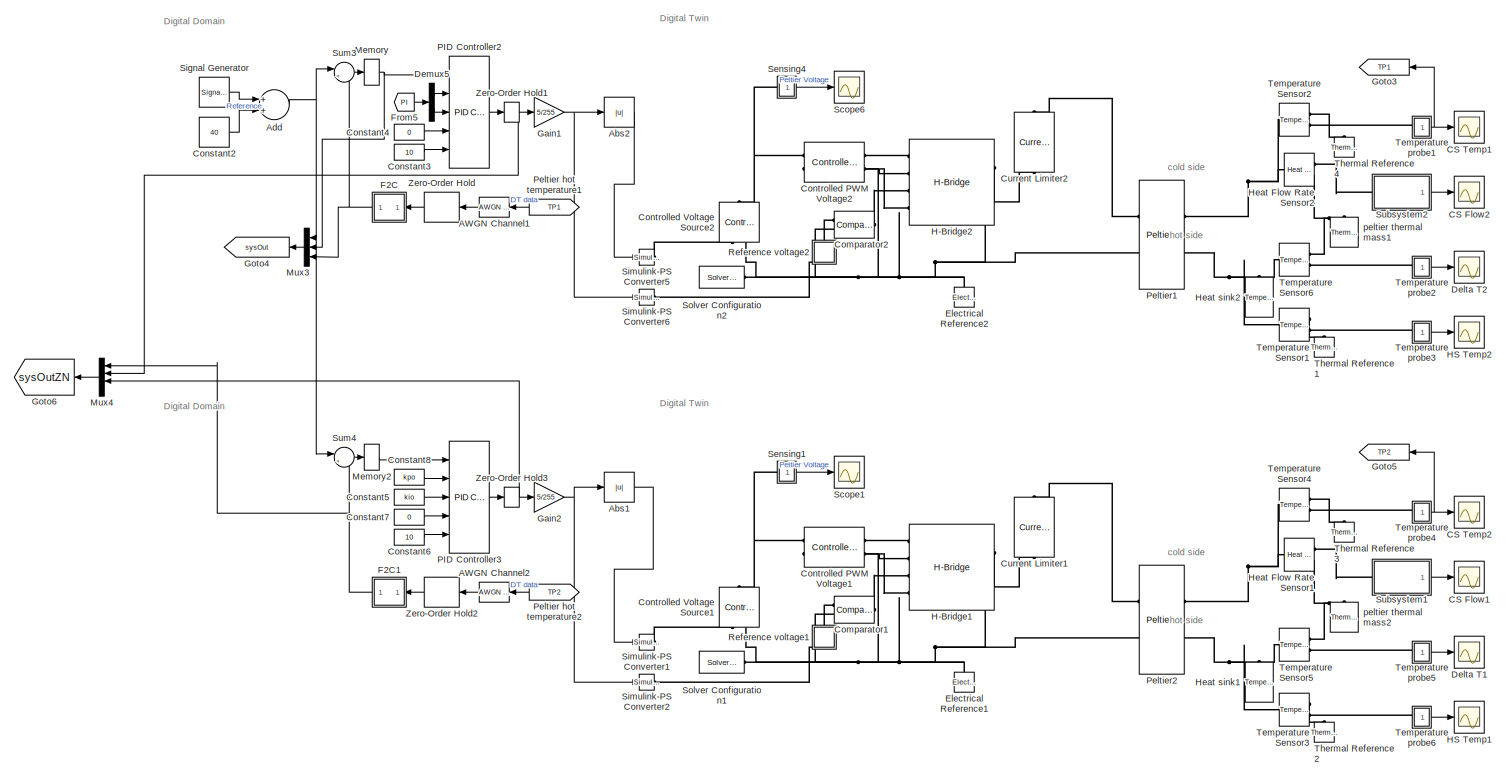
[diagram: root canvas - part 1/2, right side, full height]
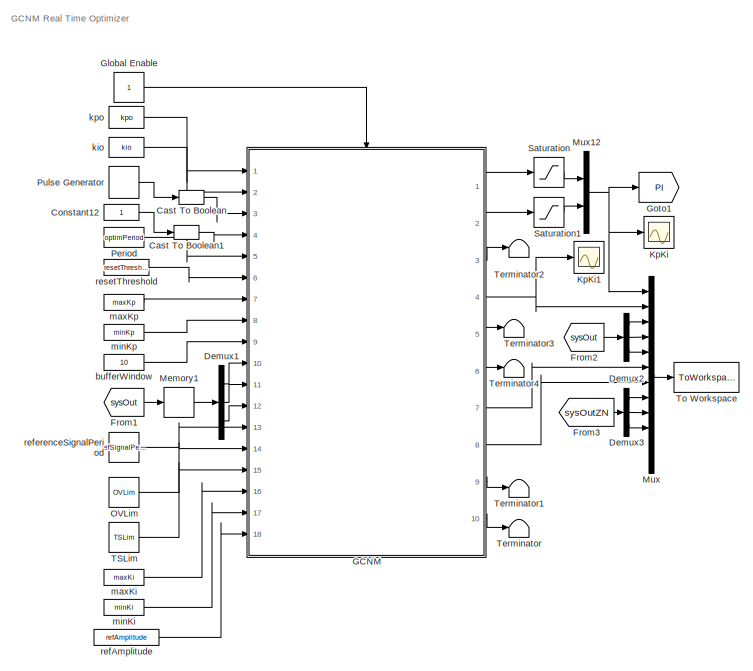
[diagram: root canvas - part 2/2, left side, full height]
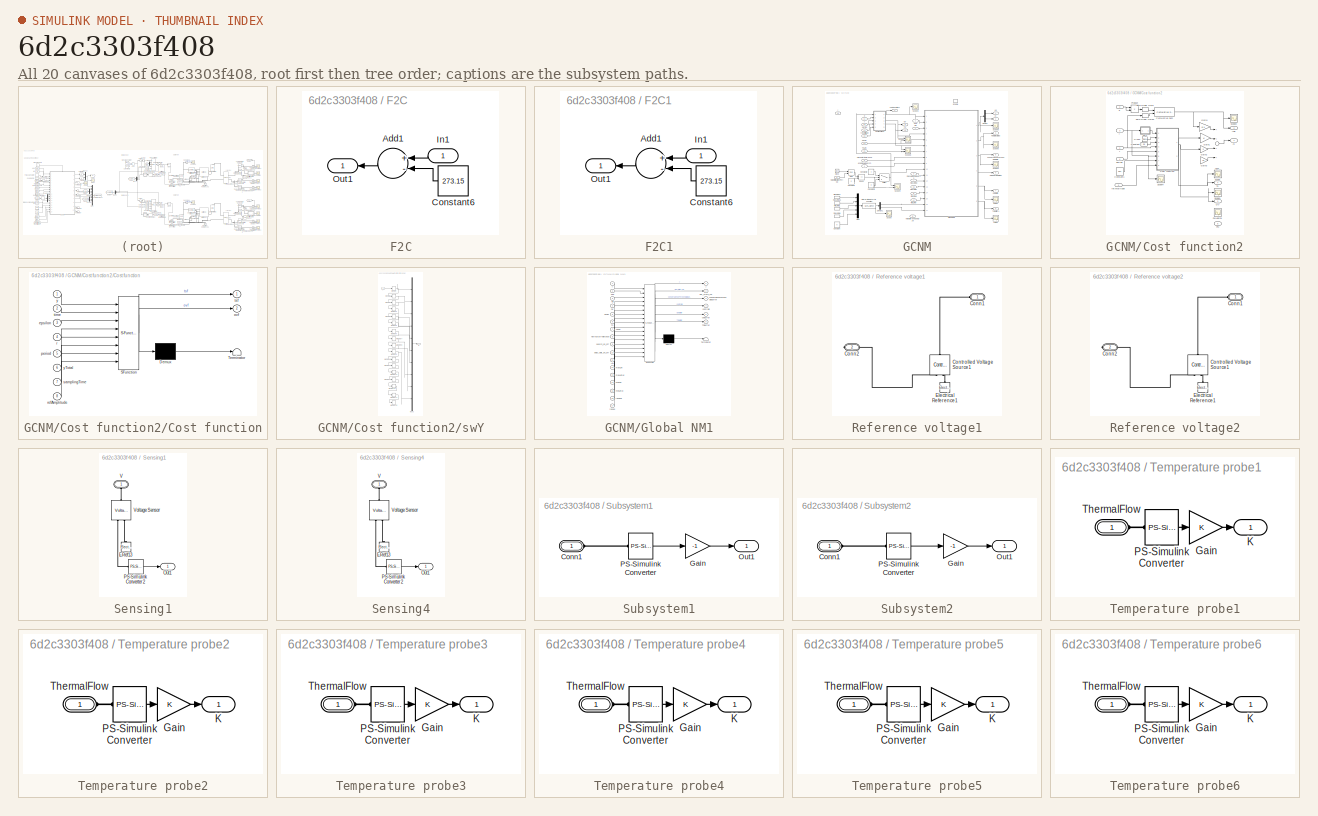
[diagram: thumbnail index - all 20 canvases of the model, root first then tree order]
MODEL slx_6d2c3303f408
KIND model
CONFIG AbsTol = auto
CONFIG EnableMultiTasking = off
CONFIG FixedStep = 0.01
CONFIG MaxStep = auto
CONFIG MinStep = auto
CONFIG RelTol = 1e-3
CONFIG SampleTimeConstraint = Unconstrained
CONFIG Solver = FixedStepAuto
CONFIG SolverName = FixedStepAuto
CONFIG StartTime = 0.0
CONFIG StopTime = 30000
BLOCK [Reference] AWGN Channel1  REF=commchan3/AWGN
Channel
  Ports = [1, 1]
  SourceBlock = commchan3/AWGN\nChannel
  SourceProductBaseCode = CM
  SourceProductName = Communications Toolbox
  SourceType = AWGN Channel
  UserDataPersistent = on
BLOCK [Reference] AWGN Channel2  REF=commchan3/AWGN
Channel
  Ports = [1, 1]
  SourceBlock = commchan3/AWGN\nChannel
  SourceProductBaseCode = CM
  SourceProductName = Communications Toolbox
  SourceType = AWGN Channel
  UserDataPersistent = on
BLOCK [Abs] Abs1
  SaturateOnIntegerOverflow = off
BLOCK [Abs] Abs2
  SaturateOnIntegerOverflow = off
BLOCK [Sum] Add
  InputSameDT = off
  OutDataTypeStr = Inherit: Inherit via internal rule
  Ports = [2, 1]
  SaturateOnIntegerOverflow = off
BLOCK [Scope] CS Flow1
  Floating = off
  NumInputPorts = 1
  Ports = [1]
  ScopeSpecificationString = Simulink.scopes.TimeScopeBlockCfg('CurrentConfiguration', extmgr.ConfigurationSet(extmgr.Configuration('Core','General UI',true),extmgr.Configuration('Core','Source UI',true),extmgr.Configuration('Sources','WiredSimulink',true,'DataLoggingVariableName','ScopeData5'),extmgr.Configuration('Visuals','Time Domain',true,'SerializedDisplays',{struct('MinYLimReal','-122.79059','MaxYLimReal','85.64839','Y...<+1499ch>
BLOCK [Scope] CS Flow2
  Commented = on
  Floating = off
  NumInputPorts = 1
  Ports = [1]
  ScopeSpecificationString = Simulink.scopes.TimeScopeBlockCfg('CurrentConfiguration', extmgr.ConfigurationSet(extmgr.Configuration('Core','General UI',true),extmgr.Configuration('Core','Source UI',true),extmgr.Configuration('Sources','WiredSimulink',true,'DataLoggingVariableName','ScopeData1'),extmgr.Configuration('Visuals','Time Domain',true,'SerializedDisplays',{struct('MinYLimReal','-122.79059','MaxYLimReal','85.64839','Y...<+1499ch>
BLOCK [Scope] CS Temp1
  Floating = off
  NumInputPorts = 1
  Ports = [1]
  ScopeSpecificationString = Simulink.scopes.TimeScopeBlockCfg('CurrentConfiguration', extmgr.ConfigurationSet(extmgr.Configuration('Core','General UI',true),extmgr.Configuration('Core','Source UI',true),extmgr.Configuration('Sources','WiredSimulink',true,'DataLoggingVariableName','ScopeData2'),extmgr.Configuration('Visuals','Time Domain',true,'SerializedDisplays',{struct('MinYLimReal','287.53053','MaxYLimReal','336.84559','Y...<+1498ch>
BLOCK [Scope] CS Temp2
  Floating = off
  NumInputPorts = 1
  Ports = [1]
  ScopeSpecificationString = Simulink.scopes.TimeScopeBlockCfg('CurrentConfiguration', extmgr.ConfigurationSet(extmgr.Configuration('Core','General UI',true),extmgr.Configuration('Core','Source UI',true),extmgr.Configuration('Sources','WiredSimulink',true,'DataLoggingVariableName','ScopeData6'),extmgr.Configuration('Visuals','Time Domain',true,'SerializedDisplays',{struct('MinYLimReal','292.20919','MaxYLimReal','330.11733','Y...<+1472ch>
BLOCK [DataTypeConversion] Cast To Boolean
  OutDataTypeStr = boolean
  RndMeth = Floor
  SaturateOnIntegerOverflow = off
BLOCK [DataTypeConversion] Cast To Boolean1
  OutDataTypeStr = boolean
  RndMeth = Floor
  SaturateOnIntegerOverflow = off
BLOCK [Reference] Comparator1  REF=ee_lib/Integrated Circuits/Comparator
  Ports = [0, 0, 0, 0, 0, 2, 1]
  SourceBlock = ee_lib/Integrated Circuits/Comparator
  SourceProductBaseCode = PS
  SourceProductName = Simscape Electrical
  SourceType = Comparator
BLOCK [Reference] Comparator2  REF=ee_lib/Integrated Circuits/Comparator
  Ports = [0, 0, 0, 0, 0, 2, 1]
  SourceBlock = ee_lib/Integrated Circuits/Comparator
  SourceProductBaseCode = PS
  SourceProductName = Simscape Electrical
  SourceType = Comparator
BLOCK [Constant] Constant12
  OutDataTypeStr = boolean
BLOCK [Constant] Constant2
  Value = 40
BLOCK [Constant] Constant3
  Value = 10
BLOCK [Constant] Constant4
  Value = 0
BLOCK [Constant] Constant5
  Value = kio
BLOCK [Constant] Constant6
  Value = 10
BLOCK [Constant] Constant7
  Value = 0
BLOCK [Constant] Constant8
  Value = kpo
BLOCK [Reference] Controlled PWM Voltage1  REF=ee_lib/Integrated Circuits/Controlled PWM
Voltage
  Ports = [0, 0, 0, 0, 0, 2, 2]
  SourceBlock = ee_lib/Integrated Circuits/Controlled PWM\nVoltage
  SourceProductBaseCode = PS
  SourceProductName = Simscape Electrical
  SourceType = Controlled PWM\nVoltage
BLOCK [Reference] Controlled PWM Voltage2  REF=ee_lib/Integrated Circuits/Controlled PWM
Voltage
  Ports = [0, 0, 0, 0, 0, 2, 2]
  SourceBlock = ee_lib/Integrated Circuits/Controlled PWM\nVoltage
  SourceProductBaseCode = PS
  SourceProductName = Simscape Electrical
  SourceType = Controlled PWM\nVoltage
BLOCK [Reference] Controlled Voltage Source1  REF=fl_lib/Electrical/Electrical Sources/Controlled Voltage
Source
  Ports = [0, 0, 0, 0, 0, 1, 2]
  SourceBlock = fl_lib/Electrical/Electrical Sources/Controlled Voltage\nSource
  SourceProductBaseCode = SS
  SourceProductName = Simscape
  SourceType = Controlled Voltage\nSource
BLOCK [Reference] Controlled Voltage Source2  REF=fl_lib/Electrical/Electrical Sources/Controlled Voltage
Source
  Ports = [0, 0, 0, 0, 0, 1, 2]
  SourceBlock = fl_lib/Electrical/Electrical Sources/Controlled Voltage\nSource
  SourceProductBaseCode = SS
  SourceProductName = Simscape
  SourceType = Controlled Voltage\nSource
BLOCK [Reference] Current Limiter1  REF=ee_lib/Semiconductors &
Converters/Current Limiter
  Ports = [0, 0, 0, 0, 0, 1, 1]
  SourceBlock = ee_lib/Semiconductors &\nConverters/Current Limiter
  SourceProductBaseCode = PS
  SourceProductName = Simscape Electrical
  SourceType = Current Limiter
BLOCK [Reference] Current Limiter2  REF=ee_lib/Semiconductors &
Converters/Current Limiter
  Ports = [0, 0, 0, 0, 0, 1, 1]
  SourceBlock = ee_lib/Semiconductors &\nConverters/Current Limiter
  SourceProductBaseCode = PS
  SourceProductName = Simscape Electrical
  SourceType = Current Limiter
BLOCK [Scope] Delta T1
  Floating = off
  NumInputPorts = 1
  Ports = [1]
  ScopeSpecificationString = Simulink.scopes.TimeScopeBlockCfg('CurrentConfiguration', extmgr.ConfigurationSet(extmgr.Configuration('Core','General UI',true),extmgr.Configuration('Core','Source UI',true),extmgr.Configuration('Sources','WiredSimulink',true,'DataLoggingVariableName','ScopeData7'),extmgr.Configuration('Visuals','Time Domain',true,'SerializedDisplays',{struct('MinYLimReal','-168.17844','MaxYLimReal','18.68649','Y...<+1441ch>
BLOCK [Scope] Delta T2
  Commented = on
  Floating = off
  NumInputPorts = 1
  Ports = [1]
  ScopeSpecificationString = Simulink.scopes.TimeScopeBlockCfg('CurrentConfiguration', extmgr.ConfigurationSet(extmgr.Configuration('Core','General UI',true),extmgr.Configuration('Core','Source UI',true),extmgr.Configuration('Sources','WiredSimulink',true,'DataLoggingVariableName','ScopeData3'),extmgr.Configuration('Visuals','Time Domain',true,'SerializedDisplays',{struct('MinYLimReal','-168.17844','MaxYLimReal','18.68649','Y...<+1441ch>
BLOCK [Demux] Demux1
  DisplayOption = bar
  Outputs = 3
  Ports = [1, 3]
BLOCK [Demux] Demux2
  DisplayOption = bar
  Outputs = 3
  Ports = [1, 3]
BLOCK [Demux] Demux3
  DisplayOption = bar
  Outputs = 3
  Ports = [1, 3]
BLOCK [Demux] Demux5
  DisplayOption = bar
  Outputs = 2
  Ports = [1, 2]
BLOCK [Reference] Electrical Reference1  REF=fl_lib/Electrical/Electrical Elements/Electrical Reference
  Ports = [0, 0, 0, 0, 0, 1]
  SourceBlock = fl_lib/Electrical/Electrical Elements/Electrical Reference
  SourceProductBaseCode = SS
  SourceProductName = Simscape
  SourceType = Electrical Reference
BLOCK [Reference] Electrical Reference2  REF=fl_lib/Electrical/Electrical Elements/Electrical Reference
  Ports = [0, 0, 0, 0, 0, 1]
  SourceBlock = fl_lib/Electrical/Electrical Elements/Electrical Reference
  SourceProductBaseCode = SS
  SourceProductName = Simscape
  SourceType = Electrical Reference
BLOCK [SubSystem] F2C
  Ports = [1, 1]
  RequestExecContextInheritance = off
BLOCK [Sum] F2C/Add1
  InputSameDT = off
  Inputs = +-
  OutDataTypeStr = Inherit: Inherit via internal rule
  Ports = [2, 1]
  SaturateOnIntegerOverflow = off
BLOCK [Constant] F2C/Constant6
  Value = 273.15
BLOCK [Inport] F2C/In1
  IconDisplay = Port number
BLOCK [Outport] F2C/Out1
  IconDisplay = Port number
BLOCK [SubSystem] F2C1
  Ports = [1, 1]
  RequestExecContextInheritance = off
BLOCK [Sum] F2C1/Add1
  InputSameDT = off
  Inputs = +-
  OutDataTypeStr = Inherit: Inherit via internal rule
  Ports = [2, 1]
  SaturateOnIntegerOverflow = off
BLOCK [Constant] F2C1/Constant6
  Value = 273.15
BLOCK [Inport] F2C1/In1
  IconDisplay = Port number
BLOCK [Outport] F2C1/Out1
  IconDisplay = Port number
BLOCK [From] From1
  GotoTag = sysOut
BLOCK [From] From2
  GotoTag = sysOut
BLOCK [From] From3
  GotoTag = sysOutZN
BLOCK [From] From5
  GotoTag = PI
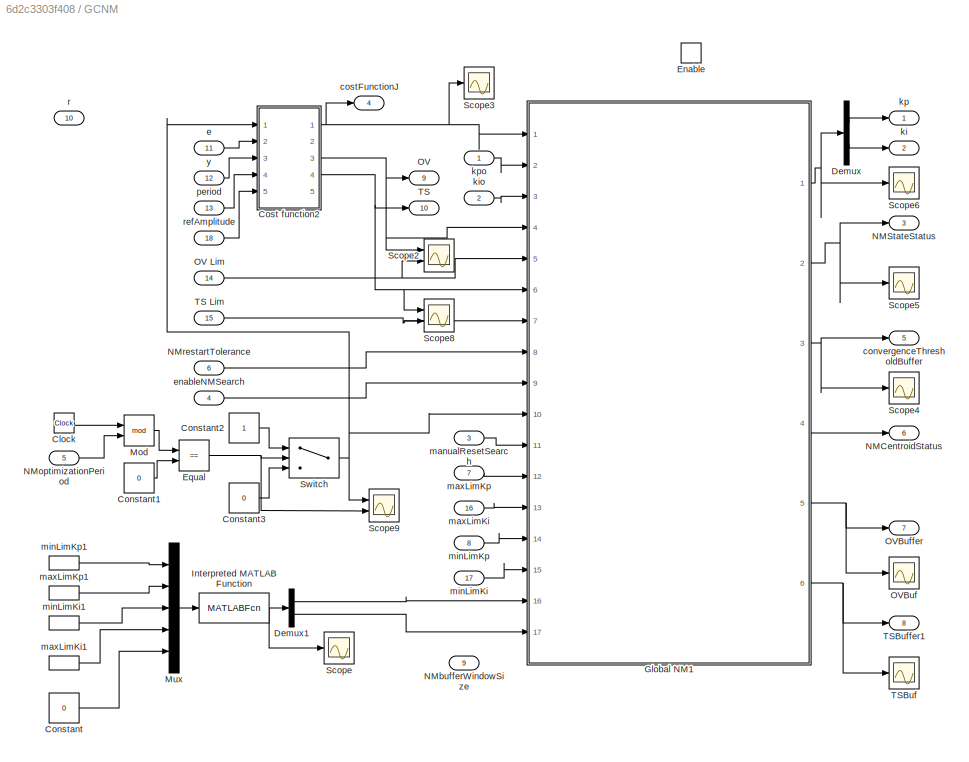
BLOCK [SubSystem] GCNM
  Ports = [18, 10, 1]
  RequestExecContextInheritance = off
BLOCK [Inport] GCNM/  OV Lim
  IconDisplay = Port number
  OutDataTypeStr = double
  Port = 14
BLOCK [Inport] GCNM/  e
  IconDisplay = Port number
  OutDataTypeStr = double
  Port = 11
BLOCK [Outport] GCNM/  ki
  IconDisplay = Port number
  OutDataTypeStr = double
  Port = 2
BLOCK [Outport] GCNM/  kp
  IconDisplay = Port number
  OutDataTypeStr = double
BLOCK [Inport] GCNM/  period
  IconDisplay = Port number
  OutDataTypeStr = double
  Port = 13
BLOCK [Inport] GCNM/  r
  IconDisplay = Port number
  OutDataTypeStr = double
  Port = 10
BLOCK [Inport] GCNM/  y
  IconDisplay = Port number
  OutDataTypeStr = double
  Port = 12
BLOCK [Clock] GCNM/Clock
BLOCK [Constant] GCNM/Constant
  Value = 0
BLOCK [Constant] GCNM/Constant1
  Value = 0
BLOCK [Constant] GCNM/Constant2
BLOCK [Constant] GCNM/Constant3
  Value = 0
BLOCK [SubSystem] GCNM/Cost function2
  Ports = [5, 5]
  RequestExecContextInheritance = off
BLOCK [Sum] GCNM/Cost function2/Add4
  InputSameDT = off
  Inputs = ++++
  OutDataTypeStr = Inherit: Inherit via internal rule
  Ports = [4, 1]
  SaturateOnIntegerOverflow = off
BLOCK [Clock] GCNM/Cost function2/Clock
BLOCK [Constant] GCNM/Cost function2/Constant
  Value = 0.5
BLOCK [Constant] GCNM/Cost function2/Constant1
  Value = 0.01
BLOCK [SubSystem] GCNM/Cost function2/Cost function
  ErrorFcn = Stateflow.Translate.translate
  PermitHierarchicalResolution = ExplicitOnly
  Ports = [8, 2]
  RequestExecContextInheritance = off
  SFBlockType = MATLAB Function
  TreatAsAtomicUnit = on
BLOCK [Demux] GCNM/Cost function2/Cost function/ Demux 
  Outputs = 1
  Ports = [1, 1]
BLOCK [S-Function] GCNM/Cost function2/Cost function/ SFunction 
  EnableBusSupport = on
  FunctionName = sf_sfun
  PortCounts = [8 3]
  Ports = [8, 3]
  SFcnIsStateOwnerBlock = off
  SFunctionDeploymentMode = off
  Tag = Stateflow S-Function 8
BLOCK [Terminator] GCNM/Cost function2/Cost function/ Terminator 
BLOCK [Inport] GCNM/Cost function2/Cost function/epsilon
  IconDisplay = Port number
  Port = 3
BLOCK [Outport] GCNM/Cost function2/Cost function/ovf
  IconDisplay = Port number
  Port = 2
BLOCK [Inport] GCNM/Cost function2/Cost function/period
  IconDisplay = Port number
  Port = 5
BLOCK [Inport] GCNM/Cost function2/Cost function/r
  IconDisplay = Port number
  Port = 4
BLOCK [Inport] GCNM/Cost function2/Cost function/refAmplitude
  IconDisplay = Port number
  Port = 8
BLOCK [Inport] GCNM/Cost function2/Cost function/samplingTime
  IconDisplay = Port number
  Port = 7
BLOCK [Inport] GCNM/Cost function2/Cost function/time
  IconDisplay = Port number
  Port = 2
BLOCK [Outport] GCNM/Cost function2/Cost function/tsf
  IconDisplay = Port number
BLOCK [Inport] GCNM/Cost function2/Cost function/y
  IconDisplay = Port number
BLOCK [Inport] GCNM/Cost function2/Cost function/yTotal
  IconDisplay = Port number
  Port = 6
BLOCK [Reference] GCNM/Cost function2/Cumulative Sum  REF=dspmathops/Cumulative
Sum
  Ports = [2, 1]
  SourceBlock = dspmathops/Cumulative\nSum
  SourceProductBaseCode = DS
  SourceProductName = DSP System Toolbox
  SourceType = Cumulative Sum
  UserDataPersistent = on
BLOCK [Gain] GCNM/Cost function2/Gain1
  OutDataTypeStr = Inherit: Inherit via internal rule
  ParamDataTypeStr = Inherit: Inherit via internal rule
  SaturateOnIntegerOverflow = off
BLOCK [Gain] GCNM/Cost function2/Gain2
  Gain = 5
  OutDataTypeStr = Inherit: Inherit via internal rule
  ParamDataTypeStr = Inherit: Inherit via internal rule
  SaturateOnIntegerOverflow = off
BLOCK [Gain] GCNM/Cost function2/Gain3
  Commented = on
  Gain = 10
  OutDataTypeStr = Inherit: Inherit via internal rule
  ParamDataTypeStr = Inherit: Inherit via internal rule
  SaturateOnIntegerOverflow = off
BLOCK [Gain] GCNM/Cost function2/Gain4
  Gain = 0.1
  OutDataTypeStr = Inherit: Inherit via internal rule
  ParamDataTypeStr = Inherit: Inherit via internal rule
  SaturateOnIntegerOverflow = off
BLOCK [Outport] GCNM/Cost function2/ISE
  IconDisplay = Port number
  Port = 2
BLOCK [Outport] GCNM/Cost function2/J1
  IconDisplay = Port number
BLOCK [Outport] GCNM/Cost function2/OV
  IconDisplay = Port number
  Port = 3
BLOCK [Outport] GCNM/Cost function2/PM
  IconDisplay = Port number
  Port = 5
BLOCK [Scope] GCNM/Cost function2/PMApprox
  Floating = off
  NumInputPorts = 1
  Ports = [1]
  ScopeSpecificationString = Simulink.scopes.TimeScopeBlockCfg('CurrentConfiguration', extmgr.ConfigurationSet(extmgr.Configuration('Core','General UI',true),extmgr.Configuration('Core','Source UI',true),extmgr.Configuration('Sources','WiredSimulink',true,'DataLoggingVariableName','ScopeData11'),extmgr.Configuration('Visuals','Time Domain',true,'SerializedDisplays',{struct('MinYLimReal','-29.00246','MaxYLimReal','104.36493','...<+1469ch>
BLOCK [Product] GCNM/Cost function2/Product
  InputSameDT = off
  OutDataTypeStr = Inherit: Inherit via internal rule
  Ports = [2, 1]
  RndMeth = Floor
  SaturateOnIntegerOverflow = off
BLOCK [Scope] GCNM/Cost function2/Scope
  Floating = off
  NumInputPorts = 1
  Ports = [1]
  ScopeSpecificationString = Simulink.scopes.TimeScopeBlockCfg('CurrentConfiguration', extmgr.ConfigurationSet(extmgr.Configuration('Core','General UI',true),extmgr.Configuration('Core','Source UI',true),extmgr.Configuration('Sources','WiredSimulink',true,'DataLoggingVariableName','ScopeData1'),extmgr.Configuration('Visuals','Time Domain',true,'SerializedDisplays',{struct('MinYLimReal','-17.5','MaxYLimReal','157.5','YLabelRea...<+1440ch>
BLOCK [Scope] GCNM/Cost function2/Scope1
  Floating = off
  NumInputPorts = 1
  Ports = [1]
  ScopeSpecificationString = Simulink.scopes.TimeScopeBlockCfg('CurrentConfiguration', extmgr.ConfigurationSet(extmgr.Configuration('Core','General UI',true),extmgr.Configuration('Core','Source UI',true),extmgr.Configuration('Sources','WiredSimulink',true,'DataLoggingVariableName','ScopeData1'),extmgr.Configuration('Visuals','Time Domain',true,'SerializedDisplays',{struct('MinYLimReal','-70.27704','MaxYLimReal','632.49334','Y...<+1464ch>
BLOCK [Scope] GCNM/Cost function2/Scope2
  Floating = off
  NumInputPorts = 1
  Ports = [1]
  ScopeSpecificationString = Simulink.scopes.TimeScopeBlockCfg('CurrentConfiguration', extmgr.ConfigurationSet(extmgr.Configuration('Core','General UI',true),extmgr.Configuration('Core','Source UI',true),extmgr.Configuration('Sources','WiredSimulink',true,'DataLoggingVariableName','ScopeData1'),extmgr.Configuration('Visuals','Time Domain',true,'SerializedDisplays',{struct('MinYLimReal','-9539.97037','MaxYLimReal','89724.26581...<+1472ch>
BLOCK [Scope] GCNM/Cost function2/Scope4
  Floating = off
  NumInputPorts = 1
  Ports = [1]
  ScopeSpecificationString = Simulink.scopes.TimeScopeBlockCfg('CurrentConfiguration', extmgr.ConfigurationSet(extmgr.Configuration('Core','General UI',true),extmgr.Configuration('Core','Source UI',true),extmgr.Configuration('Sources','WiredSimulink',true,'DataLoggingVariableName','ScopeData12'),extmgr.Configuration('Visuals','Time Domain',true,'SerializedDisplays',{struct('MinYLimReal','-7.46328','MaxYLimReal','67.16949','YL...<+1443ch>
BLOCK [Outport] GCNM/Cost function2/Ts
  IconDisplay = Port number
  Port = 4
BLOCK [ZeroOrderHold] GCNM/Cost function2/Zero-Order Hold
  SampleTime = -1
BLOCK [ZeroOrderHold] GCNM/Cost function2/Zero-Order Hold3
  SampleTime = -1
BLOCK [Inport] GCNM/Cost function2/e
  IconDisplay = Port number
  Port = 2
BLOCK [Inport] GCNM/Cost function2/period
  IconDisplay = Port number
  Port = 4
BLOCK [Inport] GCNM/Cost function2/r
  IconDisplay = Port number
BLOCK [Inport] GCNM/Cost function2/refAmplitude
  IconDisplay = Port number
  Port = 5
BLOCK [SubSystem] GCNM/Cost function2/swY
  Commented = through
  Ports = [1, 1]
  RequestExecContextInheritance = off
BLOCK [Inport] GCNM/Cost function2/swY/I
  IconDisplay = Port number
BLOCK [Memory] GCNM/Cost function2/swY/Memory
BLOCK [Memory] GCNM/Cost function2/swY/Memory1
BLOCK [Memory] GCNM/Cost function2/swY/Memory10
BLOCK [Memory] GCNM/Cost function2/swY/Memory11
BLOCK [Memory] GCNM/Cost function2/swY/Memory12
BLOCK [Memory] GCNM/Cost function2/swY/Memory13
BLOCK [Memory] GCNM/Cost function2/swY/Memory14
BLOCK [Memory] GCNM/Cost function2/swY/Memory15
BLOCK [Memory] GCNM/Cost function2/swY/Memory17
BLOCK [Memory] GCNM/Cost function2/swY/Memory2
BLOCK [Memory] GCNM/Cost function2/swY/Memory3
BLOCK [Memory] GCNM/Cost function2/swY/Memory4
BLOCK [Memory] GCNM/Cost function2/swY/Memory5
BLOCK [Memory] GCNM/Cost function2/swY/Memory6
BLOCK [Memory] GCNM/Cost function2/swY/Memory7
BLOCK [Memory] GCNM/Cost function2/swY/Memory8
BLOCK [Memory] GCNM/Cost function2/swY/Memory9
BLOCK [Mux] GCNM/Cost function2/swY/Mux3
  DisplayOption = bar
  Inputs = 10
  Ports = [10, 1]
BLOCK [Outport] GCNM/Cost function2/swY/O
  IconDisplay = Port number
BLOCK [Inport] GCNM/Cost function2/y
  IconDisplay = Port number
  Port = 3
BLOCK [Demux] GCNM/Demux
  DisplayOption = bar
  Outputs = 2
  Ports = [1, 2]
BLOCK [Demux] GCNM/Demux1
  DisplayOption = bar
  Outputs = 2
  Ports = [1, 2]
BLOCK [EnablePort] GCNM/Enable
  Ports = []
BLOCK [RelationalOperator] GCNM/Equal
  InputSameDT = off
  Operator = ==
  Ports = [2, 1]
  RndMeth = Simplest
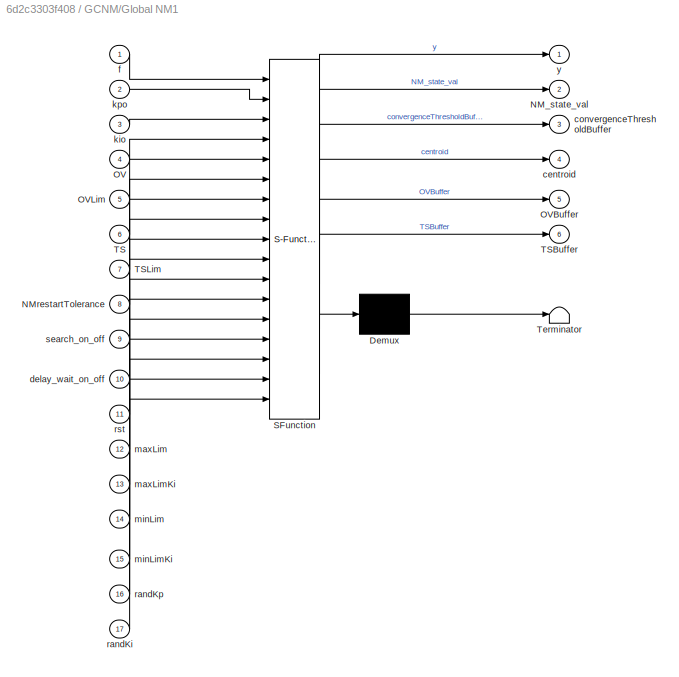
BLOCK [SubSystem] GCNM/Global NM1
  ErrorFcn = Stateflow.Translate.translate
  PermitHierarchicalResolution = ExplicitOnly
  Ports = [17, 6]
  RequestExecContextInheritance = off
  SFBlockType = MATLAB Function
  TreatAsAtomicUnit = on
BLOCK [Demux] GCNM/Global NM1/ Demux 
  Outputs = 1
  Ports = [1, 1]
BLOCK [S-Function] GCNM/Global NM1/ SFunction 
  EnableBusSupport = on
  FunctionName = sf_sfun
  PortCounts = [17 7]
  Ports = [17, 7]
  SFcnIsStateOwnerBlock = off
  SFunctionDeploymentMode = off
  Tag = Stateflow S-Function 3
BLOCK [Terminator] GCNM/Global NM1/ Terminator 
BLOCK [Outport] GCNM/Global NM1/NM_state_val
  IconDisplay = Port number
  Port = 2
BLOCK [Inport] GCNM/Global NM1/NMrestartTolerance
  IconDisplay = Port number
  Port = 8
BLOCK [Inport] GCNM/Global NM1/OV
  IconDisplay = Port number
  Port = 4
BLOCK [Outport] GCNM/Global NM1/OVBuffer
  IconDisplay = Port number
  Port = 5
BLOCK [Inport] GCNM/Global NM1/OVLim
  IconDisplay = Port number
  Port = 5
BLOCK [Inport] GCNM/Global NM1/TS
  IconDisplay = Port number
  Port = 6
BLOCK [Outport] GCNM/Global NM1/TSBuffer
  IconDisplay = Port number
  Port = 6
BLOCK [Inport] GCNM/Global NM1/TSLim
  IconDisplay = Port number
  Port = 7
BLOCK [Outport] GCNM/Global NM1/centroid
  IconDisplay = Port number
  Port = 4
BLOCK [Outport] GCNM/Global NM1/convergenceThresholdBuffer
  IconDisplay = Port number
  Port = 3
BLOCK [Inport] GCNM/Global NM1/delay_wait_on_off
  IconDisplay = Port number
  Port = 10
BLOCK [Inport] GCNM/Global NM1/f
  IconDisplay = Port number
BLOCK [Inport] GCNM/Global NM1/kio
  IconDisplay = Port number
  Port = 3
BLOCK [Inport] GCNM/Global NM1/kpo
  IconDisplay = Port number
  Port = 2
BLOCK [Inport] GCNM/Global NM1/maxLim
  IconDisplay = Port number
  Port = 12
BLOCK [Inport] GCNM/Global NM1/maxLimKi
  IconDisplay = Port number
  Port = 13
BLOCK [Inport] GCNM/Global NM1/minLim
  IconDisplay = Port number
  Port = 14
BLOCK [Inport] GCNM/Global NM1/minLimKi
  IconDisplay = Port number
  Port = 15
BLOCK [Inport] GCNM/Global NM1/randKi
  IconDisplay = Port number
  Port = 17
BLOCK [Inport] GCNM/Global NM1/randKp
  IconDisplay = Port number
  Port = 16
BLOCK [Inport] GCNM/Global NM1/rst
  IconDisplay = Port number
  Port = 11
BLOCK [Inport] GCNM/Global NM1/search_on_off
  IconDisplay = Port number
  Port = 9
BLOCK [Outport] GCNM/Global NM1/y
  IconDisplay = Port number
BLOCK [MATLABFcn] GCNM/Interpreted MATLAB Function
  MATLABFcn = FORandGCNM(u(1),u(2),u(3),u(4),u(5))
  OutputDimensions = 2
  Ports = [1, 1]
BLOCK [Math] GCNM/Mod
  Operator = mod
  Ports = [2, 1]
  SignedPower = off
BLOCK [Mux] GCNM/Mux
  DisplayOption = bar
  Inputs = 5
  Ports = [5, 1]
BLOCK [Outport] GCNM/NMCentroidStatus
  IconDisplay = Port number
  OutDataTypeStr = double
  Port = 6
BLOCK [Outport] GCNM/NMStateStatus
  IconDisplay = Port number
  OutDataTypeStr = double
  Port = 3
BLOCK [Inport] GCNM/NMbufferWindowSize
  IconDisplay = Port number
  OutDataTypeStr = uint16
  Port = 9
BLOCK [Inport] GCNM/NMoptimizationPeriod
  IconDisplay = Port number
  OutDataTypeStr = double
  Port = 5
BLOCK [Inport] GCNM/NMrestartTolerance
  IconDisplay = Port number
  Port = 6
BLOCK [Outport] GCNM/OV
  IconDisplay = Port number
  OutDataTypeStr = double
  Port = 9
BLOCK [Scope] GCNM/OVBuf
  Floating = off
  NumInputPorts = 1
  Ports = [1]
  ScopeSpecificationString = Simulink.scopes.TimeScopeBlockCfg('CurrentConfiguration', extmgr.ConfigurationSet(extmgr.Configuration('Core','General UI',true),extmgr.Configuration('Core','Source UI',true),extmgr.Configuration('Sources','WiredSimulink',true,'DataLoggingVariableName','ScopeData8'),extmgr.Configuration('Visuals','Time Domain',true,'SerializedDisplays',{struct('MinYLimReal','-1.70946','MaxYLimReal','25.38514','YLa...<+1486ch>
BLOCK [Outport] GCNM/OVBuffer
  IconDisplay = Port number
  OutDataTypeStr = double
  Port = 7
BLOCK [Scope] GCNM/Scope
  Floating = off
  NumInputPorts = 1
  Ports = [1]
  ScopeSpecificationString = Simulink.scopes.TimeScopeBlockCfg('CurrentConfiguration', extmgr.ConfigurationSet(extmgr.Configuration('Core','General UI',true),extmgr.Configuration('Core','Source UI',true),extmgr.Configuration('Sources','WiredSimulink',true,'DataLoggingVariableName','ScopeData1'),extmgr.Configuration('Visuals','Time Domain',true,'SerializedDisplays',{struct('MinYLimReal','9.22599','MaxYLimReal','140.65268','YLa...<+1445ch>
BLOCK [Scope] GCNM/Scope2
  Floating = off
  NumInputPorts = 2
  Ports = [2]
  ScopeSpecificationString = Simulink.scopes.TimeScopeBlockCfg('CurrentConfiguration', extmgr.ConfigurationSet(extmgr.Configuration('Core','General UI',true),extmgr.Configuration('Core','Source UI',true),extmgr.Configuration('Sources','WiredSimulink',true,'DataLoggingVariableName','ScopeData9'),extmgr.Configuration('Visuals','Time Domain',true,'SerializedDisplays',{struct('MinYLimReal','-12.5','MaxYLimReal','112.5','YLabelRea...<+1452ch>
BLOCK [Scope] GCNM/Scope3
  Floating = off
  NumInputPorts = 1
  Ports = [1]
  ScopeSpecificationString = Simulink.scopes.TimeScopeBlockCfg('CurrentConfiguration', extmgr.ConfigurationSet(extmgr.Configuration('Core','General UI',true),extmgr.Configuration('Core','Source UI',true),extmgr.Configuration('Sources','WiredSimulink',true,'DataLoggingVariableName','ScopeData11'),extmgr.Configuration('Visuals','Time Domain',true,'SerializedDisplays',{struct('MinYLimReal','-5774.95054','MaxYLimReal','52443.2146...<+1475ch>
BLOCK [Scope] GCNM/Scope4
  Floating = off
  NumInputPorts = 1
  Ports = [1]
  ScopeSpecificationString = Simulink.scopes.TimeScopeBlockCfg('CurrentConfiguration', extmgr.ConfigurationSet(extmgr.Configuration('Core','General UI',true),extmgr.Configuration('Core','Source UI',true),extmgr.Configuration('Sources','WiredSimulink',true,'DataLoggingVariableName','ScopeData12'),extmgr.Configuration('Visuals','Time Domain',true,'SerializedDisplays',{struct('MinYLimReal','-12.49803','MaxYLimReal','112.49978','...<+1506ch>
BLOCK [Scope] GCNM/Scope5
  Floating = off
  NumInputPorts = 1
  Ports = [1]
  ScopeSpecificationString = Simulink.scopes.TimeScopeBlockCfg('CurrentConfiguration', extmgr.ConfigurationSet(extmgr.Configuration('Core','General UI',true),extmgr.Configuration('Core','Source UI',true),extmgr.Configuration('Sources','WiredSimulink',true,'DataLoggingVariableName','ScopeData13'),extmgr.Configuration('Visuals','Time Domain',true,'SerializedDisplays',{struct('MinYLimReal','0.25','MaxYLimReal','7.75','YLabelReal...<+1534ch>
BLOCK [Scope] GCNM/Scope6
  Floating = off
  NumInputPorts = 1
  Ports = [1]
  ScopeSpecificationString = Simulink.scopes.TimeScopeBlockCfg('CurrentConfiguration', extmgr.ConfigurationSet(extmgr.Configuration('Core','General UI',true),extmgr.Configuration('Core','Source UI',true),extmgr.Configuration('Sources','WiredSimulink',true,'DataLoggingVariableName','ScopeData14'),extmgr.Configuration('Visuals','Time Domain',true,'SerializedDisplays',{struct('MinYLimReal','-0.81509','MaxYLimReal','12.31279','YL...<+1475ch>
BLOCK [Scope] GCNM/Scope8
  Floating = off
  NumInputPorts = 2
  Ports = [2]
  ScopeSpecificationString = Simulink.scopes.TimeScopeBlockCfg('CurrentConfiguration', extmgr.ConfigurationSet(extmgr.Configuration('Core','General UI',true),extmgr.Configuration('Core','Source UI',true),extmgr.Configuration('Sources','WiredSimulink',true,'DataLoggingVariableName','ScopeData17'),extmgr.Configuration('Visuals','Time Domain',true,'SerializedDisplays',{struct('MinYLimReal','-0.97614','MaxYLimReal','11.94296','YL...<+1495ch>
BLOCK [Scope] GCNM/Scope9
  Floating = off
  NumInputPorts = 2
  Ports = [2]
  ScopeSpecificationString = Simulink.scopes.TimeScopeBlockCfg('CurrentConfiguration', extmgr.ConfigurationSet(extmgr.Configuration('Core','General UI',true),extmgr.Configuration('Core','Source UI',true),extmgr.Configuration('Sources','WiredSimulink',true,'DataLoggingVariableName','ScopeData13'),extmgr.Configuration('Visuals','Time Domain',true,'SerializedDisplays',{struct('MinYLimReal','-0.125','MaxYLimReal','1.125','YLabelR...<+1410ch>
BLOCK [Switch] GCNM/Switch
  Criteria = u2 ~= 0
  InputSameDT = off
  SaturateOnIntegerOverflow = off
BLOCK [Outport] GCNM/TS
  IconDisplay = Port number
  OutDataTypeStr = double
  Port = 10
BLOCK [Inport] GCNM/TS Lim
  IconDisplay = Port number
  OutDataTypeStr = double
  Port = 15
BLOCK [Scope] GCNM/TSBuf
  Floating = off
  NumInputPorts = 1
  Ports = [1]
  ScopeSpecificationString = Simulink.scopes.TimeScopeBlockCfg('CurrentConfiguration', extmgr.ConfigurationSet(extmgr.Configuration('Core','General UI',true),extmgr.Configuration('Core','Source UI',true),extmgr.Configuration('Sources','WiredSimulink',true,'DataLoggingVariableName','ScopeData15'),extmgr.Configuration('Visuals','Time Domain',true,'SerializedDisplays',{struct('MinYLimReal','-13.575','MaxYLimReal','132.175','YLab...<+1483ch>
BLOCK [Outport] GCNM/TSBuffer1
  IconDisplay = Port number
  OutDataTypeStr = double
  Port = 8
BLOCK [Outport] GCNM/convergenceThresholdBuffer
  IconDisplay = Port number
  OutDataTypeStr = double
  Port = 5
BLOCK [Outport] GCNM/costFunctionJ
  IconDisplay = Port number
  OutDataTypeStr = double
  Port = 4
BLOCK [Inport] GCNM/enableNMSearch
  IconDisplay = Port number
  OutDataTypeStr = boolean
  Port = 4
BLOCK [Inport] GCNM/kio
  IconDisplay = Port number
  OutDataTypeStr = double
  Port = 2
BLOCK [Inport] GCNM/kpo
  IconDisplay = Port number
  OutDataTypeStr = double
BLOCK [Inport] GCNM/manualResetSearch
  IconDisplay = Port number
  OutDataTypeStr = boolean
  Port = 3
BLOCK [Inport] GCNM/maxLimKi
  IconDisplay = Port number
  OutDataTypeStr = double
  Port = 16
BLOCK [InportShadow] GCNM/maxLimKi1
  IconDisplay = Port number
  OutDataTypeStr = double
  Port = 16
BLOCK [Inport] GCNM/maxLimKp
  IconDisplay = Port number
  OutDataTypeStr = double
  Port = 7
BLOCK [InportShadow] GCNM/maxLimKp1
  IconDisplay = Port number
  OutDataTypeStr = double
  Port = 7
BLOCK [Inport] GCNM/minLimKi
  IconDisplay = Port number
  OutDataTypeStr = double
  Port = 17
BLOCK [InportShadow] GCNM/minLimKi1
  IconDisplay = Port number
  OutDataTypeStr = double
  Port = 17
BLOCK [Inport] GCNM/minLimKp
  IconDisplay = Port number
  OutDataTypeStr = double
  Port = 8
BLOCK [InportShadow] GCNM/minLimKp1
  IconDisplay = Port number
  OutDataTypeStr = double
  Port = 8
BLOCK [Inport] GCNM/refAmplitude
  IconDisplay = Port number
  OutDataTypeStr = double
  Port = 18
BLOCK [Gain] Gain1
  Gain = 5/255
  OutDataTypeStr = Inherit: Inherit via internal rule
  ParamDataTypeStr = Inherit: Inherit via internal rule
  SaturateOnIntegerOverflow = off
BLOCK [Gain] Gain2
  Gain = 5/255
  OutDataTypeStr = Inherit: Inherit via internal rule
  ParamDataTypeStr = Inherit: Inherit via internal rule
  SaturateOnIntegerOverflow = off
BLOCK [Constant] Global Enable
BLOCK [Goto] Goto1
  GotoTag = PI
BLOCK [Goto] Goto3
  GotoTag = TP1
BLOCK [Goto] Goto4
  GotoTag = sysOut
BLOCK [Goto] Goto5
  GotoTag = TP2
BLOCK [Goto] Goto6
  GotoTag = sysOutZN
BLOCK [Reference] H-Bridge1  REF=ee_lib/Semiconductors &
Converters/Converters/H-Bridge
  Ports = [0, 0, 0, 0, 0, 4, 2]
  SourceBlock = ee_lib/Semiconductors &\nConverters/Converters/H-Bridge
  SourceProductBaseCode = PS
  SourceProductName = Simscape Electrical
  SourceType = H-Bridge
BLOCK [Reference] H-Bridge2  REF=ee_lib/Semiconductors &
Converters/Converters/H-Bridge
  Ports = [0, 0, 0, 0, 0, 4, 2]
  SourceBlock = ee_lib/Semiconductors &\nConverters/Converters/H-Bridge
  SourceProductBaseCode = PS
  SourceProductName = Simscape Electrical
  SourceType = H-Bridge
BLOCK [Scope] HS Temp1
  Floating = off
  NumInputPorts = 1
  Ports = [1]
  ScopeSpecificationString = Simulink.scopes.TimeScopeBlockCfg('CurrentConfiguration', extmgr.ConfigurationSet(extmgr.Configuration('Core','General UI',true),extmgr.Configuration('Core','Source UI',true),extmgr.Configuration('Sources','WiredSimulink',true,'DataLoggingVariableName','ScopeData8'),extmgr.Configuration('Visuals','Time Domain',true,'SerializedDisplays',{struct('MinYLimReal','200.15','MaxYLimReal','400.15','YLabelR...<+1455ch>
BLOCK [Scope] HS Temp2
  Commented = on
  Floating = off
  NumInputPorts = 1
  Ports = [1]
  ScopeSpecificationString = Simulink.scopes.TimeScopeBlockCfg('CurrentConfiguration', extmgr.ConfigurationSet(extmgr.Configuration('Core','General UI',true),extmgr.Configuration('Core','Source UI',true),extmgr.Configuration('Sources','WiredSimulink',true,'DataLoggingVariableName','ScopeData4'),extmgr.Configuration('Visuals','Time Domain',true,'SerializedDisplays',{struct('MinYLimReal','200.15','MaxYLimReal','400.15','YLabelR...<+1455ch>
BLOCK [Reference] Heat Flow Rate Sensor1  REF=fl_lib/Thermal/Thermal Sensors/Heat Flow Rate
Sensor
  Ports = [0, 0, 0, 0, 0, 1, 2]
  SourceBlock = fl_lib/Thermal/Thermal Sensors/Heat Flow Rate\nSensor
  SourceProductBaseCode = SS
  SourceProductName = Simscape
  SourceType = Heat Flow Rate\nSensor
BLOCK [Reference] Heat Flow Rate Sensor2  REF=fl_lib/Thermal/Thermal Sensors/Heat Flow Rate
Sensor
  Ports = [0, 0, 0, 0, 0, 1, 2]
  SourceBlock = fl_lib/Thermal/Thermal Sensors/Heat Flow Rate\nSensor
  SourceProductBaseCode = SS
  SourceProductName = Simscape
  SourceType = Heat Flow Rate\nSensor
BLOCK [Reference] Heat sink1  REF=fl_lib/Thermal/Thermal Sources/Temperature Source
  Ports = [0, 0, 0, 0, 0, 1]
  SourceBlock = fl_lib/Thermal/Thermal Sources/Temperature Source
  SourceProductBaseCode = SS
  SourceProductName = Simscape
  SourceType = Temperature Source
BLOCK [Reference] Heat sink2  REF=fl_lib/Thermal/Thermal Sources/Temperature Source
  Ports = [0, 0, 0, 0, 0, 1]
  SourceBlock = fl_lib/Thermal/Thermal Sources/Temperature Source
  SourceProductBaseCode = SS
  SourceProductName = Simscape
  SourceType = Temperature Source
BLOCK [Scope] KpKi
  Floating = off
  NumInputPorts = 1
  Ports = [1]
  ScopeSpecificationString = Simulink.scopes.TimeScopeBlockCfg('CurrentConfiguration', extmgr.ConfigurationSet(extmgr.Configuration('Core','General UI',true),extmgr.Configuration('Core','Source UI',true),extmgr.Configuration('Sources','WiredSimulink',true,'DataLoggingVariableName','ScopeData4'),extmgr.Configuration('Visuals','Time Domain',true,'SerializedDisplays',{struct('MinYLimReal','-84.23904','MaxYLimReal','560.07292','Y...<+1600ch>
BLOCK [Scope] KpKi1
  Floating = off
  NumInputPorts = 1
  Ports = [1]
  ScopeSpecificationString = Simulink.scopes.TimeScopeBlockCfg('CurrentConfiguration', extmgr.ConfigurationSet(extmgr.Configuration('Core','General UI',true),extmgr.Configuration('Core','Source UI',true),extmgr.Configuration('Sources','WiredSimulink',true,'DataLoggingVariableName','ScopeData1'),extmgr.Configuration('Visuals','Time Domain',true,'SerializedDisplays',{struct('MinYLimReal','-5708.96026','MaxYLimReal','52435.88237...<+1572ch>
BLOCK [Memory] Memory
BLOCK [Memory] Memory1
BLOCK [Memory] Memory2
BLOCK [Mux] Mux
  DisplayOption = bar
  Inputs = 12
  Ports = [12, 1]
BLOCK [Mux] Mux12
  DisplayOption = bar
  Inputs = 2
  Ports = [2, 1]
BLOCK [Mux] Mux3
  DisplayOption = bar
  Inputs = 3
  Ports = [3, 1]
BLOCK [Mux] Mux4
  DisplayOption = bar
  Ports = [4, 1]
BLOCK [Constant] OVLim
  Value = OVLim
BLOCK [Reference] PID Controller2  REF=simulink/Continuous/PID Controller
  Ports = [5, 1]
  SourceBlock = simulink/Continuous/PID Controller
  SourceProductBaseCode = SL
  SourceProductName = Simulink
  SourceType = PID 1dof
BLOCK [Reference] PID Controller3  REF=simulink/Continuous/PID Controller
  Ports = [5, 1]
  SourceBlock = simulink/Continuous/PID Controller
  SourceProductBaseCode = SL
  SourceProductName = Simulink
  SourceType = PID 1dof
BLOCK [From] Peltier hot temperature1
  GotoTag = TP1
BLOCK [From] Peltier hot temperature2
  GotoTag = TP2
BLOCK [Reference] Peltier1  REF=ee_lib/Sensors &
Transducers/Peltier Device
  Ports = [0, 0, 0, 0, 0, 2, 2]
  SourceBlock = ee_lib/Sensors &\nTransducers/Peltier Device
  SourceProductBaseCode = PS
  SourceProductName = Simscape Electrical
  SourceType = Peltier Device
BLOCK [Reference] Peltier2  REF=ee_lib/Sensors &
Transducers/Peltier Device
  Ports = [0, 0, 0, 0, 0, 2, 2]
  SourceBlock = ee_lib/Sensors &\nTransducers/Peltier Device
  SourceProductBaseCode = PS
  SourceProductName = Simscape Electrical
  SourceType = Peltier Device
BLOCK [Constant] Period
  OutDataTypeStr = double
  Value = optimPeriod
BLOCK [DiscretePulseGenerator] Pulse Generator
  Period = 20
  Ports = [0, 1]
  PulseType = Time based
  PulseWidth = 0.1
BLOCK [SubSystem] Reference voltage1
  Ports = [0, 0, 0, 0, 0, 1, 1]
  RequestExecContextInheritance = off
BLOCK [PMIOPort] Reference voltage1/Conn1
  Side = Left
BLOCK [PMIOPort] Reference voltage1/Conn2
  Port = 2
  Side = Right
BLOCK [Reference] Reference voltage1/Controlled Voltage Source1  REF=fl_lib/Electrical/Electrical Sources/Controlled Voltage
Source
  Ports = [0, 0, 0, 0, 0, 1, 2]
  SourceBlock = fl_lib/Electrical/Electrical Sources/Controlled Voltage\nSource
  SourceProductBaseCode = SS
  SourceProductName = Simscape
  SourceType = Controlled Voltage\nSource
BLOCK [Reference] Reference voltage1/Electrical Reference1  REF=fl_lib/Electrical/Electrical Elements/Electrical Reference
  Ports = [0, 0, 0, 0, 0, 1]
  SourceBlock = fl_lib/Electrical/Electrical Elements/Electrical Reference
  SourceProductBaseCode = SS
  SourceProductName = Simscape
  SourceType = Electrical Reference
BLOCK [SubSystem] Reference voltage2
  Ports = [0, 0, 0, 0, 0, 1, 1]
  RequestExecContextInheritance = off
BLOCK [PMIOPort] Reference voltage2/Conn1
  Side = Left
BLOCK [PMIOPort] Reference voltage2/Conn2
  Port = 2
  Side = Right
BLOCK [Reference] Reference voltage2/Controlled Voltage Source1  REF=fl_lib/Electrical/Electrical Sources/Controlled Voltage
Source
  Ports = [0, 0, 0, 0, 0, 1, 2]
  SourceBlock = fl_lib/Electrical/Electrical Sources/Controlled Voltage\nSource
  SourceProductBaseCode = SS
  SourceProductName = Simscape
  SourceType = Controlled Voltage\nSource
BLOCK [Reference] Reference voltage2/Electrical Reference1  REF=fl_lib/Electrical/Electrical Elements/Electrical Reference
  Ports = [0, 0, 0, 0, 0, 1]
  SourceBlock = fl_lib/Electrical/Electrical Elements/Electrical Reference
  SourceProductBaseCode = SS
  SourceProductName = Simscape
  SourceType = Electrical Reference
BLOCK [Saturate] Saturation
  InputPortMap = u0
  LowerLimit = 0
  Ports = [1, 1]
  UpperLimit = 200
BLOCK [Saturate] Saturation1
  InputPortMap = u0
  LowerLimit = 0
  Ports = [1, 1]
  UpperLimit = 200
BLOCK [Scope] Scope1
  Floating = off
  NumInputPorts = 1
  Ports = [1]
  ScopeSpecificationString = Simulink.scopes.TimeScopeBlockCfg('CurrentConfiguration', extmgr.ConfigurationSet(extmgr.Configuration('Core','General UI',true),extmgr.Configuration('Core','Source UI',true),extmgr.Configuration('Sources','WiredSimulink',true,'DataLoggingVariableName','ScopeData9'),extmgr.Configuration('Visuals','Time Domain',true,'SerializedDisplays',{struct('MinYLimReal','-0.37936','MaxYLimReal','5.59771','YLab...<+1452ch>
BLOCK [Scope] Scope6
  Commented = on
  Floating = off
  NumInputPorts = 1
  Ports = [1]
  ScopeSpecificationString = Simulink.scopes.TimeScopeBlockCfg('CurrentConfiguration', extmgr.ConfigurationSet(extmgr.Configuration('Core','General UI',true),extmgr.Configuration('Core','Source UI',true),extmgr.Configuration('Sources','WiredSimulink',true,'DataLoggingVariableName','ScopeData10'),extmgr.Configuration('Visuals','Time Domain',true,'SerializedDisplays',{struct('MinYLimReal','-0.37936','MaxYLimReal','5.59771','YLa...<+1453ch>
BLOCK [SubSystem] Sensing1
  Ports = [0, 1, 0, 0, 0, 1]
  RequestExecContextInheritance = off
BLOCK [Reference] Sensing1/ERef13  REF=fl_lib/Electrical/Electrical Elements/Electrical Reference
  Ports = [0, 0, 0, 0, 0, 1]
  SourceBlock = fl_lib/Electrical/Electrical Elements/Electrical Reference
  SourceProductBaseCode = SS
  SourceProductName = Simscape
  SourceType = Electrical Reference
BLOCK [Outport] Sensing1/Out1
  IconDisplay = Port number
  VectorParamsAs1DForOutWhenUnconnected = off
BLOCK [Reference] Sensing1/PS-Simulink Converter 2  REF=nesl_utility/PS-Simulink
Converter
  Ports = [0, 1, 0, 0, 0, 1]
  SourceBlock = nesl_utility/PS-Simulink\nConverter
  SourceProductBaseCode = SS
  SourceProductName = Simscape
  SourceType = PS-Simulink\nConverter
BLOCK [PMIOPort] Sensing1/V
  Side = Left
BLOCK [Reference] Sensing1/Voltage Sensor  REF=fl_lib/Electrical/Electrical Sensors/Voltage Sensor
  Ports = [0, 0, 0, 0, 0, 1, 2]
  SourceBlock = fl_lib/Electrical/Electrical Sensors/Voltage Sensor
  SourceProductBaseCode = SS
  SourceProductName = Simscape
  SourceType = Voltage Sensor
BLOCK [SubSystem] Sensing4
  Commented = on
  Ports = [0, 1, 0, 0, 0, 1]
  RequestExecContextInheritance = off
BLOCK [Reference] Sensing4/ERef13  REF=fl_lib/Electrical/Electrical Elements/Electrical Reference
  Ports = [0, 0, 0, 0, 0, 1]
  SourceBlock = fl_lib/Electrical/Electrical Elements/Electrical Reference
  SourceProductBaseCode = SS
  SourceProductName = Simscape
  SourceType = Electrical Reference
BLOCK [Outport] Sensing4/Out1
  IconDisplay = Port number
  VectorParamsAs1DForOutWhenUnconnected = off
BLOCK [Reference] Sensing4/PS-Simulink Converter 2  REF=nesl_utility/PS-Simulink
Converter
  Ports = [0, 1, 0, 0, 0, 1]
  SourceBlock = nesl_utility/PS-Simulink\nConverter
  SourceProductBaseCode = SS
  SourceProductName = Simscape
  SourceType = PS-Simulink\nConverter
BLOCK [PMIOPort] Sensing4/V
  Side = Left
BLOCK [Reference] Sensing4/Voltage Sensor  REF=fl_lib/Electrical/Electrical Sensors/Voltage Sensor
  Ports = [0, 0, 0, 0, 0, 1, 2]
  SourceBlock = fl_lib/Electrical/Electrical Sensors/Voltage Sensor
  SourceProductBaseCode = SS
  SourceProductName = Simscape
  SourceType = Voltage Sensor
BLOCK [SignalGenerator] Signal Generator
  Amplitude = 10
  Frequency = 1/refSignalPeriod
  Ports = [0, 1]
  WaveForm = square
BLOCK [Reference] Simulink-PS Converter1  REF=nesl_utility/Simulink-PS
Converter
  Ports = [1, 0, 0, 0, 0, 0, 1]
  SourceBlock = nesl_utility/Simulink-PS\nConverter
  SourceProductBaseCode = SS
  SourceProductName = Simscape
  SourceType = Simulink-PS\nConverter
BLOCK [Reference] Simulink-PS Converter2  REF=nesl_utility/Simulink-PS
Converter
  Ports = [1, 0, 0, 0, 0, 0, 1]
  SourceBlock = nesl_utility/Simulink-PS\nConverter
  SourceProductBaseCode = SS
  SourceProductName = Simscape
  SourceType = Simulink-PS\nConverter
BLOCK [Reference] Simulink-PS Converter5  REF=nesl_utility/Simulink-PS
Converter
  Ports = [1, 0, 0, 0, 0, 0, 1]
  SourceBlock = nesl_utility/Simulink-PS\nConverter
  SourceProductBaseCode = SS
  SourceProductName = Simscape
  SourceType = Simulink-PS\nConverter
BLOCK [Reference] Simulink-PS Converter6  REF=nesl_utility/Simulink-PS
Converter
  Ports = [1, 0, 0, 0, 0, 0, 1]
  SourceBlock = nesl_utility/Simulink-PS\nConverter
  SourceProductBaseCode = SS
  SourceProductName = Simscape
  SourceType = Simulink-PS\nConverter
BLOCK [Reference] Solver Configuration1  REF=nesl_utility/Solver
Configuration
  Ports = [0, 0, 0, 0, 0, 0, 1]
  SourceBlock = nesl_utility/Solver\nConfiguration
  SourceProductBaseCode = SS
  SourceProductName = Simscape
  SourceType = Solver\nConfiguration
BLOCK [Reference] Solver Configuration2  REF=nesl_utility/Solver
Configuration
  Ports = [0, 0, 0, 0, 0, 0, 1]
  SourceBlock = nesl_utility/Solver\nConfiguration
  SourceProductBaseCode = SS
  SourceProductName = Simscape
  SourceType = Solver\nConfiguration
BLOCK [SubSystem] Subsystem1
  Ports = [0, 1, 0, 0, 0, 1]
  RequestExecContextInheritance = off
BLOCK [PMIOPort] Subsystem1/Conn1
  Side = Left
BLOCK [Gain] Subsystem1/Gain
  Gain = -1
  OutDataTypeStr = Inherit: Inherit via internal rule
  ParamDataTypeStr = Inherit: Inherit via internal rule
  SaturateOnIntegerOverflow = off
BLOCK [Outport] Subsystem1/Out1
  IconDisplay = Port number
  VectorParamsAs1DForOutWhenUnconnected = off
BLOCK [Reference] Subsystem1/PS-Simulink Converter  REF=nesl_utility/PS-Simulink
Converter
  Ports = [0, 1, 0, 0, 0, 1]
  SourceBlock = nesl_utility/PS-Simulink\nConverter
  SourceProductBaseCode = SS
  SourceProductName = Simscape
  SourceType = PS-Simulink\nConverter
BLOCK [SubSystem] Subsystem2
  Ports = [0, 1, 0, 0, 0, 1]
  RequestExecContextInheritance = off
BLOCK [PMIOPort] Subsystem2/Conn1
  Side = Left
BLOCK [Gain] Subsystem2/Gain
  Gain = -1
  OutDataTypeStr = Inherit: Inherit via internal rule
  ParamDataTypeStr = Inherit: Inherit via internal rule
  SaturateOnIntegerOverflow = off
BLOCK [Outport] Subsystem2/Out1
  IconDisplay = Port number
  VectorParamsAs1DForOutWhenUnconnected = off
BLOCK [Reference] Subsystem2/PS-Simulink Converter  REF=nesl_utility/PS-Simulink
Converter
  Ports = [0, 1, 0, 0, 0, 1]
  SourceBlock = nesl_utility/PS-Simulink\nConverter
  SourceProductBaseCode = SS
  SourceProductName = Simscape
  SourceType = PS-Simulink\nConverter
BLOCK [Sum] Sum3
  IconShape = round
  InputSameDT = off
  Inputs = |+-
  OutDataTypeStr = Inherit: Inherit via internal rule
  Ports = [2, 1]
  SaturateOnIntegerOverflow = off
BLOCK [Sum] Sum4
  IconShape = round
  InputSameDT = off
  Inputs = |+-
  OutDataTypeStr = Inherit: Inherit via internal rule
  Ports = [2, 1]
  SaturateOnIntegerOverflow = off
BLOCK [Constant] TSLim
  Value = TSLim
BLOCK [Reference] Temperature Sensor1  REF=fl_lib/Thermal/Thermal Sensors/Temperature Sensor
  Ports = [0, 0, 0, 0, 0, 1, 2]
  SourceBlock = fl_lib/Thermal/Thermal Sensors/Temperature Sensor
  SourceProductBaseCode = SS
  SourceProductName = Simscape
  SourceType = Temperature Sensor
BLOCK [Reference] Temperature Sensor2  REF=fl_lib/Thermal/Thermal Sensors/Temperature Sensor
  Ports = [0, 0, 0, 0, 0, 1, 2]
  SourceBlock = fl_lib/Thermal/Thermal Sensors/Temperature Sensor
  SourceProductBaseCode = SS
  SourceProductName = Simscape
  SourceType = Temperature Sensor
BLOCK [Reference] Temperature Sensor3  REF=fl_lib/Thermal/Thermal Sensors/Temperature Sensor
  Ports = [0, 0, 0, 0, 0, 1, 2]
  SourceBlock = fl_lib/Thermal/Thermal Sensors/Temperature Sensor
  SourceProductBaseCode = SS
  SourceProductName = Simscape
  SourceType = Temperature Sensor
BLOCK [Reference] Temperature Sensor4  REF=fl_lib/Thermal/Thermal Sensors/Temperature Sensor
  Ports = [0, 0, 0, 0, 0, 1, 2]
  SourceBlock = fl_lib/Thermal/Thermal Sensors/Temperature Sensor
  SourceProductBaseCode = SS
  SourceProductName = Simscape
  SourceType = Temperature Sensor
BLOCK [Reference] Temperature Sensor5  REF=fl_lib/Thermal/Thermal Sensors/Temperature Sensor
  Ports = [0, 0, 0, 0, 0, 1, 2]
  SourceBlock = fl_lib/Thermal/Thermal Sensors/Temperature Sensor
  SourceProductBaseCode = SS
  SourceProductName = Simscape
  SourceType = Temperature Sensor
BLOCK [Reference] Temperature Sensor6  REF=fl_lib/Thermal/Thermal Sensors/Temperature Sensor
  Ports = [0, 0, 0, 0, 0, 1, 2]
  SourceBlock = fl_lib/Thermal/Thermal Sensors/Temperature Sensor
  SourceProductBaseCode = SS
  SourceProductName = Simscape
  SourceType = Temperature Sensor
BLOCK [SubSystem] Temperature probe1
  Ports = [0, 1, 0, 0, 0, 1]
  RequestExecContextInheritance = off
BLOCK [Gain] Temperature probe1/Gain
  OutDataTypeStr = Inherit: Inherit via internal rule
  ParamDataTypeStr = Inherit: Inherit via internal rule
  SaturateOnIntegerOverflow = off
BLOCK [Outport] Temperature probe1/K
  IconDisplay = Port number
BLOCK [Reference] Temperature probe1/PS-Simulink Converter  REF=nesl_utility/PS-Simulink
Converter
  Ports = [0, 1, 0, 0, 0, 1]
  SourceBlock = nesl_utility/PS-Simulink\nConverter
  SourceProductBaseCode = SS
  SourceProductName = Simscape
  SourceType = PS-Simulink\nConverter
BLOCK [PMIOPort] Temperature probe1/ThermalFlow
  Side = Left
BLOCK [SubSystem] Temperature probe2
  Ports = [0, 1, 0, 0, 0, 1]
  RequestExecContextInheritance = off
BLOCK [Gain] Temperature probe2/Gain
  OutDataTypeStr = Inherit: Inherit via internal rule
  ParamDataTypeStr = Inherit: Inherit via internal rule
  SaturateOnIntegerOverflow = off
BLOCK [Outport] Temperature probe2/K
  IconDisplay = Port number
BLOCK [Reference] Temperature probe2/PS-Simulink Converter  REF=nesl_utility/PS-Simulink
Converter
  Ports = [0, 1, 0, 0, 0, 1]
  SourceBlock = nesl_utility/PS-Simulink\nConverter
  SourceProductBaseCode = SS
  SourceProductName = Simscape
  SourceType = PS-Simulink\nConverter
BLOCK [PMIOPort] Temperature probe2/ThermalFlow
  Side = Left
BLOCK [SubSystem] Temperature probe3
  Ports = [0, 1, 0, 0, 0, 1]
  RequestExecContextInheritance = off
BLOCK [Gain] Temperature probe3/Gain
  OutDataTypeStr = Inherit: Inherit via internal rule
  ParamDataTypeStr = Inherit: Inherit via internal rule
  SaturateOnIntegerOverflow = off
BLOCK [Outport] Temperature probe3/K
  IconDisplay = Port number
BLOCK [Reference] Temperature probe3/PS-Simulink Converter  REF=nesl_utility/PS-Simulink
Converter
  Ports = [0, 1, 0, 0, 0, 1]
  SourceBlock = nesl_utility/PS-Simulink\nConverter
  SourceProductBaseCode = SS
  SourceProductName = Simscape
  SourceType = PS-Simulink\nConverter
BLOCK [PMIOPort] Temperature probe3/ThermalFlow
  Side = Left
BLOCK [SubSystem] Temperature probe4
  Ports = [0, 1, 0, 0, 0, 1]
  RequestExecContextInheritance = off
BLOCK [Gain] Temperature probe4/Gain
  OutDataTypeStr = Inherit: Inherit via internal rule
  ParamDataTypeStr = Inherit: Inherit via internal rule
  SaturateOnIntegerOverflow = off
BLOCK [Outport] Temperature probe4/K
  IconDisplay = Port number
BLOCK [Reference] Temperature probe4/PS-Simulink Converter  REF=nesl_utility/PS-Simulink
Converter
  Ports = [0, 1, 0, 0, 0, 1]
  SourceBlock = nesl_utility/PS-Simulink\nConverter
  SourceProductBaseCode = SS
  SourceProductName = Simscape
  SourceType = PS-Simulink\nConverter
BLOCK [PMIOPort] Temperature probe4/ThermalFlow
  Side = Left
BLOCK [SubSystem] Temperature probe5
  Ports = [0, 1, 0, 0, 0, 1]
  RequestExecContextInheritance = off
BLOCK [Gain] Temperature probe5/Gain
  OutDataTypeStr = Inherit: Inherit via internal rule
  ParamDataTypeStr = Inherit: Inherit via internal rule
  SaturateOnIntegerOverflow = off
BLOCK [Outport] Temperature probe5/K
  IconDisplay = Port number
BLOCK [Reference] Temperature probe5/PS-Simulink Converter  REF=nesl_utility/PS-Simulink
Converter
  Ports = [0, 1, 0, 0, 0, 1]
  SourceBlock = nesl_utility/PS-Simulink\nConverter
  SourceProductBaseCode = SS
  SourceProductName = Simscape
  SourceType = PS-Simulink\nConverter
BLOCK [PMIOPort] Temperature probe5/ThermalFlow
  Side = Left
BLOCK [SubSystem] Temperature probe6
  Ports = [0, 1, 0, 0, 0, 1]
  RequestExecContextInheritance = off
BLOCK [Gain] Temperature probe6/Gain
  OutDataTypeStr = Inherit: Inherit via internal rule
  ParamDataTypeStr = Inherit: Inherit via internal rule
  SaturateOnIntegerOverflow = off
BLOCK [Outport] Temperature probe6/K
  IconDisplay = Port number
BLOCK [Reference] Temperature probe6/PS-Simulink Converter  REF=nesl_utility/PS-Simulink
Converter
  Ports = [0, 1, 0, 0, 0, 1]
  SourceBlock = nesl_utility/PS-Simulink\nConverter
  SourceProductBaseCode = SS
  SourceProductName = Simscape
  SourceType = PS-Simulink\nConverter
BLOCK [PMIOPort] Temperature probe6/ThermalFlow
  Side = Left
BLOCK [Terminator] Terminator
BLOCK [Terminator] Terminator1
BLOCK [Terminator] Terminator2
BLOCK [Terminator] Terminator3
BLOCK [Terminator] Terminator4
BLOCK [Reference] Thermal Reference1  REF=fl_lib/Thermal/Thermal Elements/Thermal Reference
  Ports = [0, 0, 0, 0, 0, 1]
  SourceBlock = fl_lib/Thermal/Thermal Elements/Thermal Reference
  SourceProductBaseCode = SS
  SourceProductName = Simscape
  SourceType = Thermal Reference
BLOCK [Reference] Thermal Reference2  REF=fl_lib/Thermal/Thermal Elements/Thermal Reference
  Ports = [0, 0, 0, 0, 0, 1]
  SourceBlock = fl_lib/Thermal/Thermal Elements/Thermal Reference
  SourceProductBaseCode = SS
  SourceProductName = Simscape
  SourceType = Thermal Reference
BLOCK [Reference] Thermal Reference3  REF=fl_lib/Thermal/Thermal Elements/Thermal Reference
  Ports = [0, 0, 0, 0, 0, 1]
  SourceBlock = fl_lib/Thermal/Thermal Elements/Thermal Reference
  SourceProductBaseCode = SS
  SourceProductName = Simscape
  SourceType = Thermal Reference
BLOCK [Reference] Thermal Reference4  REF=fl_lib/Thermal/Thermal Elements/Thermal Reference
  Ports = [0, 0, 0, 0, 0, 1]
  SourceBlock = fl_lib/Thermal/Thermal Elements/Thermal Reference
  SourceProductBaseCode = SS
  SourceProductName = Simscape
  SourceType = Thermal Reference
BLOCK [ToWorkspace] To Workspace
  FixptAsFi = on
  MaxDataPoints = inf
  Ports = [1]
  SampleTime = -1
  SaveFormat = Timeseries
  VariableName = benchData
BLOCK [ZeroOrderHold] Zero-Order Hold
  SampleTime = -1
BLOCK [ZeroOrderHold] Zero-Order Hold1
BLOCK [ZeroOrderHold] Zero-Order Hold2
  SampleTime = -1
BLOCK [ZeroOrderHold] Zero-Order Hold3
BLOCK [Constant] bufferWindow
  OutDataTypeStr = uint16
  Value = 10
BLOCK [Constant] kio
  OutDataTypeStr = double
  Value = kio
BLOCK [Constant] kpo
  OutDataTypeStr = double
  Value = kpo
BLOCK [Constant] maxKi
  OutDataTypeStr = double
  Value = maxKi
  VectorParams1D = off
BLOCK [Constant] maxKp
  OutDataTypeStr = double
  Value = maxKp
BLOCK [Constant] minKi
  OutDataTypeStr = double
  Value = minKi
BLOCK [Constant] minKp
  OutDataTypeStr = double
  Value = minKp
BLOCK [Reference] peltier thermal mass1  REF=fl_lib/Thermal/Thermal Elements/Thermal Mass
  Ports = [0, 0, 0, 0, 0, 1]
  SourceBlock = fl_lib/Thermal/Thermal Elements/Thermal Mass
  SourceProductBaseCode = SS
  SourceProductName = Simscape
  SourceType = Thermal Mass
BLOCK [Reference] peltier thermal mass2  REF=fl_lib/Thermal/Thermal Elements/Thermal Mass
  Ports = [0, 0, 0, 0, 0, 1]
  SourceBlock = fl_lib/Thermal/Thermal Elements/Thermal Mass
  SourceProductBaseCode = SS
  SourceProductName = Simscape
  SourceType = Thermal Mass
BLOCK [Constant] refAmplitude
  OutDataTypeStr = double
  Value = refAmplitude
BLOCK [Constant] referenceSignalPeriod
  Value = refSignalPeriod
BLOCK [Constant] resetThreshold
  Value = resetThreshold
ANNOTATION (root): Digital Domain
ANNOTATION (root): Digital Twin
ANNOTATION (root): GCNM Real Time Optimizer
ANNOTATION (root): cold side
ANNOTATION (root): hot side
LINE AWGN Channel1:1 -> Zero-Order Hold:1
LINE AWGN Channel2:1 -> Zero-Order Hold2:1
LINE Abs1:1 -> Simulink-PS Converter1:1
LINE Abs2:1 -> Simulink-PS Converter5:1
NET Add:1 -> Mux3:1, Sum3:1, Sum4:1
LINE Cast To Boolean1:1 -> GCNM:4
LINE Cast To Boolean:1 -> GCNM:3
LINE Constant12:1 -> Cast To Boolean1:1
LINE Constant2:1 -> Add:2
LINE Constant3:1 -> PID Controller2:5
LINE Constant4:1 -> PID Controller2:4
LINE Constant5:1 -> PID Controller3:3
LINE Constant6:1 -> PID Controller3:5
LINE Constant7:1 -> PID Controller3:4
LINE Constant8:1 -> PID Controller3:2
LINE Demux1:1 -> GCNM:10
LINE Demux1:2 -> GCNM:11
LINE Demux1:3 -> GCNM:12
LINE Demux2:1 -> Mux:3
LINE Demux2:2 -> Mux:4
LINE Demux2:3 -> Mux:5
LINE Demux3:1 -> Mux:8
LINE Demux3:2 -> Mux:9
LINE Demux3:3 -> Mux:10
LINE Demux5:1 -> PID Controller2:2
LINE Demux5:2 -> PID Controller2:3
LINE F2C/Add1:1 -> F2C/Out1:1
LINE F2C/Constant6:1 -> F2C/Add1:2
LINE F2C/In1:1 -> F2C/Add1:1
LINE F2C1/Add1:1 -> F2C1/Out1:1
LINE F2C1/Constant6:1 -> F2C1/Add1:2
LINE F2C1/In1:1 -> F2C1/Add1:1
NET F2C1:1 -> Mux4:1, Sum4:2
NET F2C:1 -> Mux3:3, Sum3:2
LINE From1:1 -> Memory1:1
LINE From2:1 -> Demux2:1
LINE From3:1 -> Demux3:1
LINE From5:1 -> Demux5:1
NET GCNM/  OV Lim:1 -> GCNM/Global NM1:5, GCNM/Scope2:2
LINE GCNM/  e:1 -> GCNM/Cost function2:2
LINE GCNM/  period:1 -> GCNM/Cost function2:4
LINE GCNM/  y:1 -> GCNM/Cost function2:3
LINE GCNM/Clock:1 -> GCNM/Mod:1
LINE GCNM/Constant1:1 -> GCNM/Equal:2
LINE GCNM/Constant2:1 -> GCNM/Switch:1
LINE GCNM/Constant3:1 -> GCNM/Switch:3
LINE GCNM/Constant:1 -> GCNM/Mux:5
LINE GCNM/Cost function2/Add4:1 -> GCNM/Cost function2/J1:1
LINE GCNM/Cost function2/Clock:1 -> GCNM/Cost function2/Cost function:2
LINE GCNM/Cost function2/Constant1:1 -> GCNM/Cost function2/Cost function:7
LINE GCNM/Cost function2/Constant:1 -> GCNM/Cost function2/Cost function:3
NET GCNM/Cost function2/Cost function:1 -> GCNM/Cost function2/Gain1:1, GCNM/Cost function2/Scope:1, GCNM/Cost function2/Ts:1
NET GCNM/Cost function2/Cost function:2 -> GCNM/Cost function2/Gain2:1, GCNM/Cost function2/OV:1, GCNM/Cost function2/Scope1:1
NET GCNM/Cost function2/Cumulative Sum:1 -> GCNM/Cost function2/Gain4:1, GCNM/Cost function2/ISE:1, GCNM/Cost function2/Scope2:1
LINE GCNM/Cost function2/Gain1:1 -> GCNM/Cost function2/Add4:2
LINE GCNM/Cost function2/Gain2:1 -> GCNM/Cost function2/Add4:3
LINE GCNM/Cost function2/Gain3:1 -> GCNM/Cost function2/Add4:4
LINE GCNM/Cost function2/Gain4:1 -> GCNM/Cost function2/Add4:1
LINE GCNM/Cost function2/Product:1 -> GCNM/Cost function2/Zero-Order Hold:1
LINE GCNM/Cost function2/Zero-Order Hold3:1 -> GCNM/Cost function2/Cumulative Sum:2
LINE GCNM/Cost function2/Zero-Order Hold:1 -> GCNM/Cost function2/Cumulative Sum:1
NET GCNM/Cost function2/e:1 -> GCNM/Cost function2/Product:1, GCNM/Cost function2/Product:2
LINE GCNM/Cost function2/period:1 -> GCNM/Cost function2/Cost function:5
NET GCNM/Cost function2/r:1 -> GCNM/Cost function2/Cost function:4, GCNM/Cost function2/Zero-Order Hold3:1
LINE GCNM/Cost function2/refAmplitude:1 -> GCNM/Cost function2/Cost function:8
LINE GCNM/Cost function2/swY/I:1 -> GCNM/Cost function2/swY/Memory:1
LINE GCNM/Cost function2/swY/Memory10:1 -> GCNM/Cost function2/swY/Memory11:1
LINE GCNM/Cost function2/swY/Memory11:1 -> GCNM/Cost function2/swY/Memory14:1
LINE GCNM/Cost function2/swY/Memory12:1 -> GCNM/Cost function2/swY/Memory13:1
LINE GCNM/Cost function2/swY/Memory13:1 -> GCNM/Cost function2/swY/Memory17:1
LINE GCNM/Cost function2/swY/Memory14:1 -> GCNM/Cost function2/swY/Memory12:1
LINE GCNM/Cost function2/swY/Memory17:1 -> GCNM/Cost function2/swY/Memory15:1
NET GCNM/Cost function2/swY/Memory1:1 -> GCNM/Cost function2/swY/Memory2:1, GCNM/Cost function2/swY/Mux3:2
NET GCNM/Cost function2/swY/Memory2:1 -> GCNM/Cost function2/swY/Memory3:1, GCNM/Cost function2/swY/Mux3:3
NET GCNM/Cost function2/swY/Memory3:1 -> GCNM/Cost function2/swY/Memory4:1, GCNM/Cost function2/swY/Mux3:4
NET GCNM/Cost function2/swY/Memory4:1 -> GCNM/Cost function2/swY/Memory5:1, GCNM/Cost function2/swY/Mux3:5
NET GCNM/Cost function2/swY/Memory5:1 -> GCNM/Cost function2/swY/Memory6:1, GCNM/Cost function2/swY/Mux3:6
NET GCNM/Cost function2/swY/Memory6:1 -> GCNM/Cost function2/swY/Memory7:1, GCNM/Cost function2/swY/Mux3:7
NET GCNM/Cost function2/swY/Memory7:1 -> GCNM/Cost function2/swY/Memory8:1, GCNM/Cost function2/swY/Mux3:8
NET GCNM/Cost function2/swY/Memory8:1 -> GCNM/Cost function2/swY/Memory9:1, GCNM/Cost function2/swY/Mux3:9
NET GCNM/Cost function2/swY/Memory9:1 -> GCNM/Cost function2/swY/Memory10:1, GCNM/Cost function2/swY/Mux3:10
NET GCNM/Cost function2/swY/Memory:1 -> GCNM/Cost function2/swY/Memory1:1, GCNM/Cost function2/swY/Mux3:1
LINE GCNM/Cost function2/swY/Mux3:1 -> GCNM/Cost function2/swY/O:1
LINE GCNM/Cost function2/swY:1 -> GCNM/Cost function2/Cost function:1
NET GCNM/Cost function2/y:1 -> GCNM/Cost function2/Cost function:6, GCNM/Cost function2/Scope4:1, GCNM/Cost function2/swY:1
NET GCNM/Cost function2:1 -> GCNM/Global NM1:1, GCNM/Scope3:1, GCNM/costFunctionJ:1
NET GCNM/Cost function2:3 -> GCNM/Global NM1:4, GCNM/OV:1, GCNM/Scope2:1
NET GCNM/Cost function2:4 -> GCNM/Global NM1:6, GCNM/Scope8:1, GCNM/TS:1
LINE GCNM/Demux1:1 -> GCNM/Global NM1:16
LINE GCNM/Demux1:2 -> GCNM/Global NM1:17
LINE GCNM/Demux:1 -> GCNM/  kp:1
LINE GCNM/Demux:2 -> GCNM/  ki:1
NET GCNM/Equal:1 -> GCNM/Scope9:2, GCNM/Switch:2
NET GCNM/Global NM1:1 -> GCNM/Demux:1, GCNM/Scope6:1
NET GCNM/Global NM1:2 -> GCNM/NMStateStatus:1, GCNM/Scope5:1
NET GCNM/Global NM1:3 -> GCNM/Scope4:1, GCNM/convergenceThresholdBuffer:1
LINE GCNM/Global NM1:4 -> GCNM/NMCentroidStatus:1
NET GCNM/Global NM1:5 -> GCNM/OVBuf:1, GCNM/OVBuffer:1
NET GCNM/Global NM1:6 -> GCNM/TSBuf:1, GCNM/TSBuffer1:1
NET GCNM/Interpreted MATLAB Function:1 -> GCNM/Demux1:1, GCNM/Scope:1
LINE GCNM/Mod:1 -> GCNM/Equal:1
LINE GCNM/Mux:1 -> GCNM/Interpreted MATLAB Function:1
LINE GCNM/NMoptimizationPeriod:1 -> GCNM/Mod:2
LINE GCNM/NMrestartTolerance:1 -> GCNM/Global NM1:8
NET GCNM/Switch:1 -> GCNM/Cost function2:1, GCNM/Global NM1:10, GCNM/Scope9:1
NET GCNM/TS Lim:1 -> GCNM/Global NM1:7, GCNM/Scope8:2
LINE GCNM/enableNMSearch:1 -> GCNM/Global NM1:9
LINE GCNM/kio:1 -> GCNM/Global NM1:3
LINE GCNM/kpo:1 -> GCNM/Global NM1:2
LINE GCNM/manualResetSearch:1 -> GCNM/Global NM1:11
LINE GCNM/maxLimKi1:1 -> GCNM/Mux:4
LINE GCNM/maxLimKi:1 -> GCNM/Global NM1:13
LINE GCNM/maxLimKp1:1 -> GCNM/Mux:2
LINE GCNM/maxLimKp:1 -> GCNM/Global NM1:12
LINE GCNM/minLimKi1:1 -> GCNM/Mux:3
LINE GCNM/minLimKi:1 -> GCNM/Global NM1:15
LINE GCNM/minLimKp1:1 -> GCNM/Mux:1
LINE GCNM/minLimKp:1 -> GCNM/Global NM1:14
LINE GCNM/refAmplitude:1 -> GCNM/Cost function2:5
LINE GCNM:1 -> Saturation:1
LINE GCNM:10 -> Terminator:1
LINE GCNM:2 -> Saturation1:1
LINE GCNM:3 -> Terminator2:1
NET GCNM:4 -> KpKi1:1, Mux:2
LINE GCNM:5 -> Terminator3:1
LINE GCNM:6 -> Terminator4:1
LINE GCNM:7 -> Mux:6
LINE GCNM:8 -> Mux:7
LINE GCNM:9 -> Terminator1:1
NET Gain1:1 -> Abs2:1, Simulink-PS Converter6:1
NET Gain2:1 -> Abs1:1, Simulink-PS Converter2:1
LINE Global Enable:1 -> GCNM:enable
LINE Memory1:1 -> Demux1:1
LINE Memory2:1 -> PID Controller3:1
NET Memory:1 -> Mux3:2, PID Controller2:1
NET Mux12:1 -> Goto1:1, KpKi:1, Mux:1
LINE Mux3:1 -> Goto4:1
LINE Mux4:1 -> Goto6:1
LINE Mux:1 -> To Workspace:1
LINE OVLim:1 -> GCNM:14
LINE PID Controller2:1 -> Zero-Order Hold1:1
LINE PID Controller3:1 -> Zero-Order Hold3:1
LINE Peltier hot temperature1:1 -> AWGN Channel1:1
LINE Peltier hot temperature2:1 -> AWGN Channel2:1
LINE Period:1 -> GCNM:5
LINE Pulse Generator:1 -> Cast To Boolean:1
LINE Saturation1:1 -> Mux12:2
LINE Saturation:1 -> Mux12:1
LINE Sensing1/PS-Simulink Converter 2:1 -> Sensing1/Out1:1
LINE Sensing1:1 -> Scope1:1
LINE Sensing4/PS-Simulink Converter 2:1 -> Sensing4/Out1:1
LINE Sensing4:1 -> Scope6:1
LINE Signal Generator:1 -> Add:1
LINE Subsystem1/Gain:1 -> Subsystem1/Out1:1
LINE Subsystem1/PS-Simulink Converter:1 -> Subsystem1/Gain:1
LINE Subsystem1:1 -> CS Flow1:1
LINE Subsystem2/Gain:1 -> Subsystem2/Out1:1
LINE Subsystem2/PS-Simulink Converter:1 -> Subsystem2/Gain:1
LINE Subsystem2:1 -> CS Flow2:1
LINE Sum3:1 -> Memory:1
LINE Sum4:1 -> Memory2:1
LINE TSLim:1 -> GCNM:15
LINE Temperature probe1/Gain:1 -> Temperature probe1/K:1
LINE Temperature probe1/PS-Simulink Converter:1 -> Temperature probe1/Gain:1
NET Temperature probe1:1 -> CS Temp1:1, Goto3:1
LINE Temperature probe2/Gain:1 -> Temperature probe2/K:1
LINE Temperature probe2/PS-Simulink Converter:1 -> Temperature probe2/Gain:1
LINE Temperature probe2:1 -> Delta T2:1
LINE Temperature probe3/Gain:1 -> Temperature probe3/K:1
LINE Temperature probe3/PS-Simulink Converter:1 -> Temperature probe3/Gain:1
LINE Temperature probe3:1 -> HS Temp2:1
LINE Temperature probe4/Gain:1 -> Temperature probe4/K:1
LINE Temperature probe4/PS-Simulink Converter:1 -> Temperature probe4/Gain:1
NET Temperature probe4:1 -> CS Temp2:1, Goto5:1
LINE Temperature probe5/Gain:1 -> Temperature probe5/K:1
LINE Temperature probe5/PS-Simulink Converter:1 -> Temperature probe5/Gain:1
LINE Temperature probe5:1 -> Delta T1:1
LINE Temperature probe6/Gain:1 -> Temperature probe6/K:1
LINE Temperature probe6/PS-Simulink Converter:1 -> Temperature probe6/Gain:1
LINE Temperature probe6:1 -> HS Temp1:1
NET Zero-Order Hold1:1 -> Gain1:1, Mux4:2
LINE Zero-Order Hold2:1 -> F2C1:1
NET Zero-Order Hold3:1 -> Gain2:1, Mux4:3
LINE Zero-Order Hold:1 -> F2C:1
LINE bufferWindow:1 -> GCNM:9
LINE kio:1 -> GCNM:2
LINE kpo:1 -> GCNM:1
LINE maxKi:1 -> GCNM:16
LINE maxKp:1 -> GCNM:7
LINE minKi:1 -> GCNM:17
LINE minKp:1 -> GCNM:8
LINE refAmplitude:1 -> GCNM:18
LINE referenceSignalPeriod:1 -> GCNM:13
LINE resetThreshold:1 -> GCNM:6
PLINE Comparator1:LConn1 -- Reference voltage1:LConn1
PNET net1: Comparator1:LConn2 -- Controlled PWM Voltage1:LConn2 -- Controlled PWM Voltage1:RConn2 -- Controlled Voltage Source1:RConn2 -- Electrical Reference1:LConn1 -- H-Bridge1:LConn2 -- H-Bridge1:LConn4 -- H-Bridge1:RConn2 -- Peltier2:LConn2 -- Solver Configuration1:RConn1
PLINE Comparator1:RConn1 -- H-Bridge1:LConn3
PLINE Comparator2:LConn1 -- Reference voltage2:LConn1
PNET net2: Comparator2:LConn2 -- Controlled PWM Voltage2:LConn2 -- Controlled PWM Voltage2:RConn2 -- Controlled Voltage Source2:RConn2 -- Electrical Reference2:LConn1 -- H-Bridge2:LConn2 -- H-Bridge2:LConn4 -- H-Bridge2:RConn2 -- Peltier1:LConn2 -- Solver Configuration2:RConn1
PLINE Comparator2:RConn1 -- H-Bridge2:LConn3
PNET net3: Controlled PWM Voltage1:LConn1 -- Controlled Voltage Source1:LConn1 -- Sensing1:LConn1
PLINE Controlled PWM Voltage1:RConn1 -- H-Bridge1:LConn1
PNET net4: Controlled PWM Voltage2:LConn1 -- Controlled Voltage Source2:LConn1 -- Sensing4:LConn1
PLINE Controlled PWM Voltage2:RConn1 -- H-Bridge2:LConn1
PLINE Controlled Voltage Source1:RConn1 -- Simulink-PS Converter1:RConn1
PLINE Controlled Voltage Source2:RConn1 -- Simulink-PS Converter5:RConn1
PLINE Current Limiter1:LConn1 -- H-Bridge1:RConn1
PLINE Current Limiter1:RConn1 -- Peltier2:LConn1
PLINE Current Limiter2:LConn1 -- H-Bridge2:RConn1
PLINE Current Limiter2:RConn1 -- Peltier1:LConn1
PNET net5: Heat Flow Rate Sensor1:LConn1 -- Peltier2:RConn1 -- Temperature Sensor4:LConn1
PLINE Heat Flow Rate Sensor1:RConn1 -- Subsystem1:LConn1
PNET net6: Heat Flow Rate Sensor1:RConn2 -- Temperature Sensor5:RConn1 -- peltier thermal mass2:LConn1
PNET net7: Heat Flow Rate Sensor2:LConn1 -- Peltier1:RConn1 -- Temperature Sensor2:LConn1
PLINE Heat Flow Rate Sensor2:RConn1 -- Subsystem2:LConn1
PNET net8: Heat Flow Rate Sensor2:RConn2 -- Temperature Sensor6:RConn1 -- peltier thermal mass1:LConn1
PNET net9: Heat sink1:LConn1 -- Peltier2:RConn2 -- Temperature Sensor3:LConn1 -- Temperature Sensor5:LConn1
PNET net10: Heat sink2:LConn1 -- Peltier1:RConn2 -- Temperature Sensor1:LConn1 -- Temperature Sensor6:LConn1
PLINE Reference voltage1/Conn1:RConn1 -- Reference voltage1/Controlled Voltage Source1:LConn1
PLINE Reference voltage1/Conn2:RConn1 -- Reference voltage1/Controlled Voltage Source1:RConn1
PLINE Reference voltage1/Controlled Voltage Source1:RConn2 -- Reference voltage1/Electrical Reference1:LConn1
PLINE Reference voltage1:RConn1 -- Simulink-PS Converter2:RConn1
PLINE Reference voltage2/Conn1:RConn1 -- Reference voltage2/Controlled Voltage Source1:LConn1
PLINE Reference voltage2/Conn2:RConn1 -- Reference voltage2/Controlled Voltage Source1:RConn1
PLINE Reference voltage2/Controlled Voltage Source1:RConn2 -- Reference voltage2/Electrical Reference1:LConn1
PLINE Reference voltage2:RConn1 -- Simulink-PS Converter6:RConn1
PLINE Sensing1/ERef13:LConn1 -- Sensing1/Voltage Sensor:RConn2
PLINE Sensing1/PS-Simulink Converter 2:LConn1 -- Sensing1/Voltage Sensor:RConn1
PLINE Sensing1/V:RConn1 -- Sensing1/Voltage Sensor:LConn1
PLINE Sensing4/ERef13:LConn1 -- Sensing4/Voltage Sensor:RConn2
PLINE Sensing4/PS-Simulink Converter 2:LConn1 -- Sensing4/Voltage Sensor:RConn1
PLINE Sensing4/V:RConn1 -- Sensing4/Voltage Sensor:LConn1
PLINE Subsystem1/Conn1:RConn1 -- Subsystem1/PS-Simulink Converter:LConn1
PLINE Subsystem2/Conn1:RConn1 -- Subsystem2/PS-Simulink Converter:LConn1
PLINE Temperature Sensor1:RConn1 -- Thermal Reference1:LConn1
PLINE Temperature Sensor1:RConn2 -- Temperature probe3:LConn1
PLINE Temperature Sensor2:RConn1 -- Thermal Reference4:LConn1
PLINE Temperature Sensor2:RConn2 -- Temperature probe1:LConn1
PLINE Temperature Sensor3:RConn1 -- Thermal Reference2:LConn1
PLINE Temperature Sensor3:RConn2 -- Temperature probe6:LConn1
PLINE Temperature Sensor4:RConn1 -- Thermal Reference3:LConn1
PLINE Temperature Sensor4:RConn2 -- Temperature probe4:LConn1
PLINE Temperature Sensor5:RConn2 -- Temperature probe5:LConn1
PLINE Temperature Sensor6:RConn2 -- Temperature probe2:LConn1
PLINE Temperature probe1/PS-Simulink Converter:LConn1 -- Temperature probe1/ThermalFlow:RConn1
PLINE Temperature probe2/PS-Simulink Converter:LConn1 -- Temperature probe2/ThermalFlow:RConn1
PLINE Temperature probe3/PS-Simulink Converter:LConn1 -- Temperature probe3/ThermalFlow:RConn1
PLINE Temperature probe4/PS-Simulink Converter:LConn1 -- Temperature probe4/ThermalFlow:RConn1
PLINE Temperature probe5/PS-Simulink Converter:LConn1 -- Temperature probe5/ThermalFlow:RConn1
PLINE Temperature probe6/PS-Simulink Converter:LConn1 -- Temperature probe6/ThermalFlow:RConn1
note: NET lines group one-source signal fan-out (src -> all destinations, sorted); 1:1 wires keep LINE; PNET lines group multi-terminal physical nets as a canonical sorted terminal list (undirected conserving connections); 2-terminal nets keep the pairwise PLINE form
CHART GCNM/Global NM1 states=1 transitions=1
  STATE_LABEL 'eML_blk_kernel()'
  STATE_LABEL 'SCRIPT:\n%function [y, NM_state_val,convergenceThresholdBuffer,centroid,BiasRFState1ReflectionCoefficientBuffer]= fcn(f,kpo, kio,BiasRFState1ReflectionCoefficient,BiasRFState1ReflectionCoefficientLim,...\n%                                                                                                            NMrestartTolerance, search_on_off, delay_wait_on_off, rst,maxLim,minLim)\nfunction [y, NM...<+3608ch>'
CHART GCNM/Cost function2/Cost function states=1 transitions=1
  STATE_LABEL 'eML_blk_kernel()'
  STATE_LABEL 'SCRIPT:\nfunction [tsf,ovf] = performance(y,time,epsilon,r,period,yTotal,samplingTime,refAmplitude)\n        persistent OV tsFlag yHist counter ts PmAprox;\n        \n        %initialization state\n          if isempty(OV)        \n              OV=0;\n              PmAprox=0;\n              tsFlag=1;\n              yHist=zeros(1,round(period/(2*samplingTime)));\n              counter=1;\n              ts=0*...<+828ch>'
